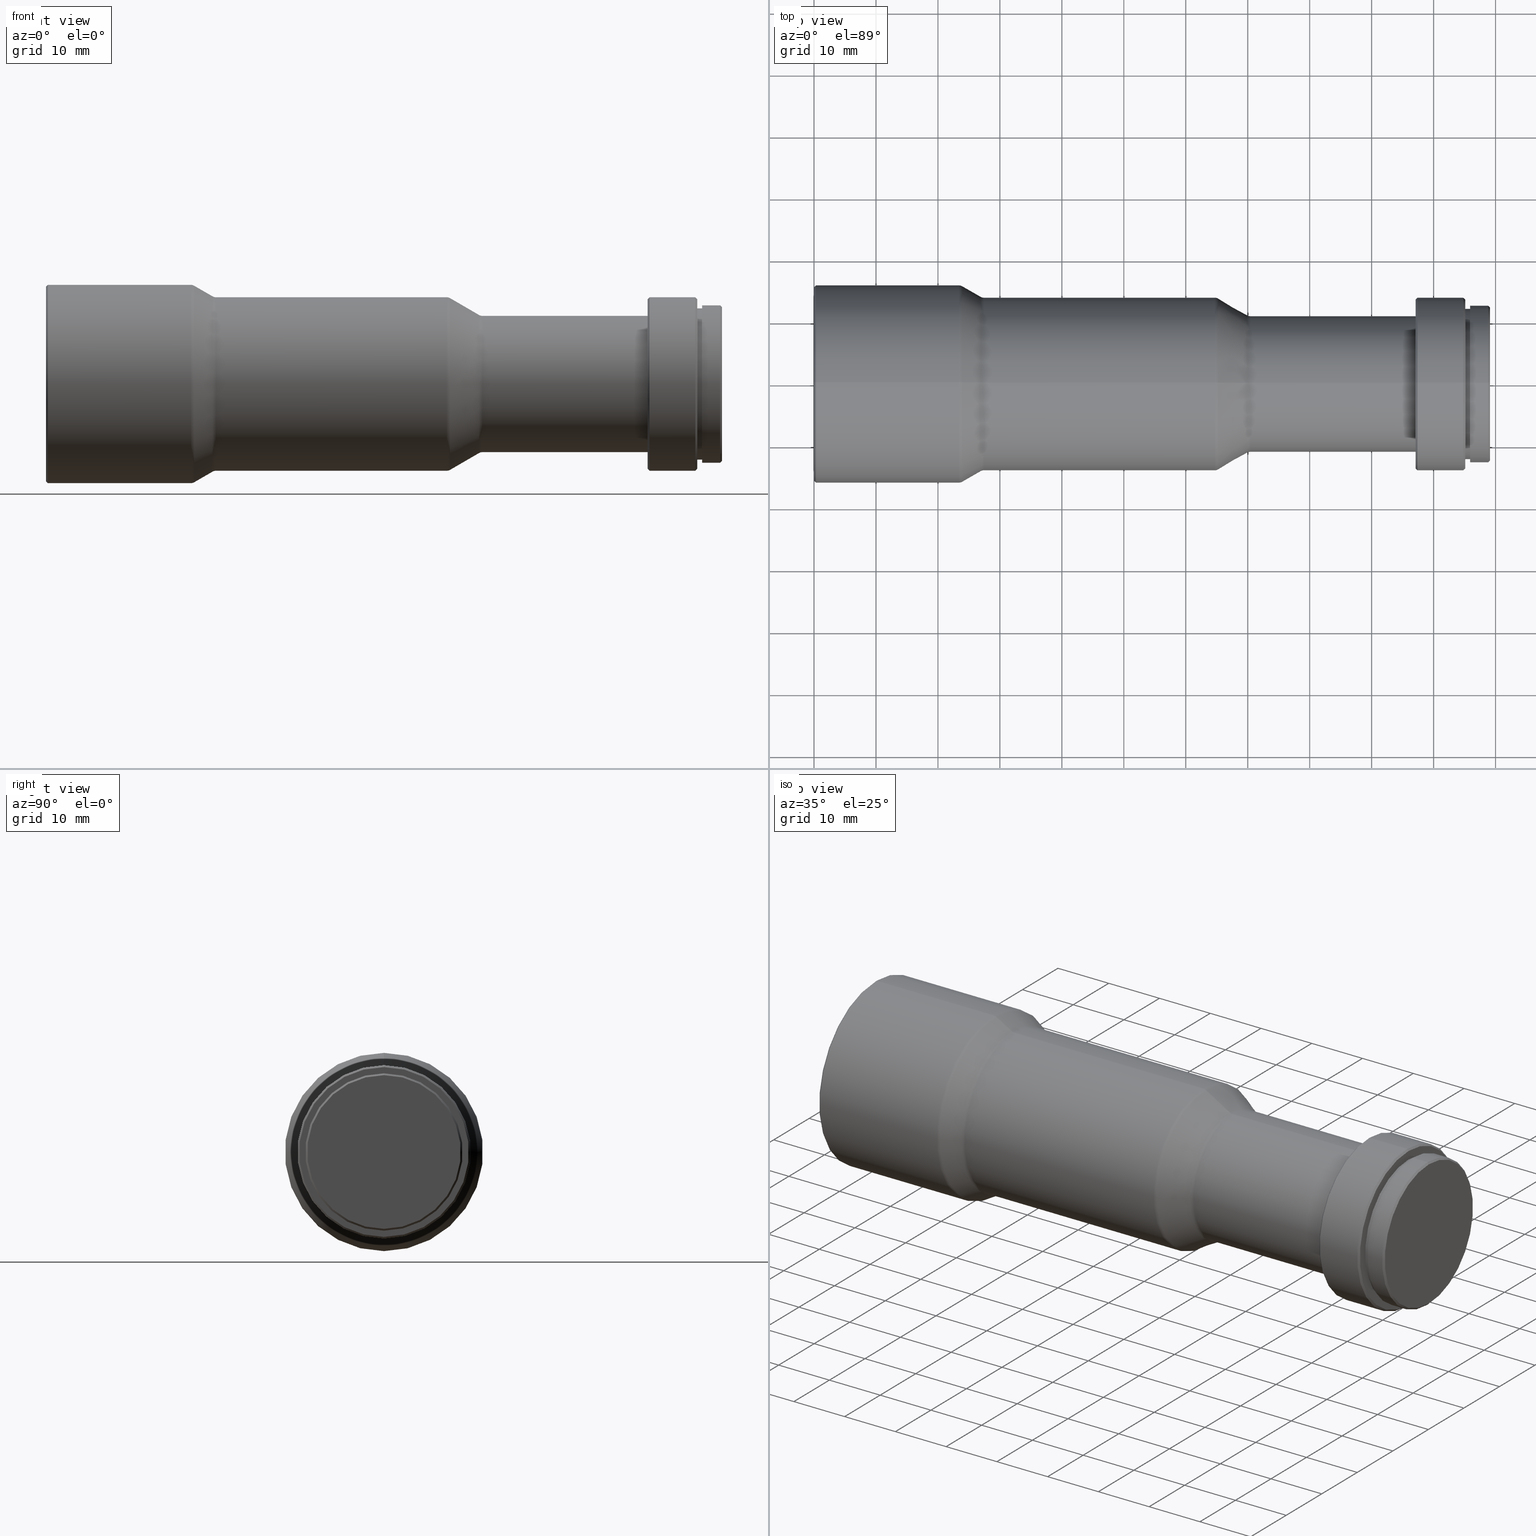
[diagram: canonical four-view strip — front | top / right | iso, engineering-drawing reading convention]
A machine part, canonical four-view strip (front | top / right | iso — engineering-drawing reading convention). The complete STEP part file that produces these views, byte-faithful:
ISO-10303-21;
HEADER;
FILE_DESCRIPTION (( 'STEP AP203' ),
    '1' );
FILE_NAME ('WWH10-108ATV3.STEP',
    '2021-09-09T07:08:35',
    ( '' ),
    ( '' ),
    'SwSTEP 2.0',
    'SolidWorks 2017',
    '' );
FILE_SCHEMA (( 'CONFIG_CONTROL_DESIGN' ));
ENDSEC;

DATA;
#1 = EDGE_CURVE ( 'NONE', #1018, #997, #567, .T. ) ;
#2 = EDGE_LOOP ( 'NONE', ( #431, #402, #715, #72 ) ) ;
#3 = AXIS2_PLACEMENT_3D ( 'NONE', #341, #662, #412 ) ;
#4 = CARTESIAN_POINT ( 'NONE',  ( 104.8000000000000100, 1.714505518806294600E-015, -14.00000000000000000 ) ) ;
#5 = ORIENTED_EDGE ( 'NONE', *, *, #374, .T. ) ;
#6 = DIRECTION ( 'NONE',  ( 1.000000000000000000, 0.0000000000000000000, 0.0000000000000000000 ) ) ;
#7 = DIRECTION ( 'NONE',  ( -1.000000000000000000, -0.0000000000000000000, -0.0000000000000000000 ) ) ;
#8 = CC_DESIGN_DATE_AND_TIME_ASSIGNMENT ( #117, #376, ( #513 ) ) ;
#9 = APPROVAL_PERSON_ORGANIZATION ( #437, #982, #221 ) ;
#10 = CARTESIAN_POINT ( 'NONE',  ( 0.0000000000000000000, 0.0000000000000000000, 12.70000000000000800 ) ) ;
#11 = ORIENTED_EDGE ( 'NONE', *, *, #556, .T. ) ;
#12 = CARTESIAN_POINT ( 'NONE',  ( 97.09999999999999400, 0.0000000000000000000, 11.00000000000000000 ) ) ;
#13 = CIRCLE ( 'NONE', #362, 15.86602540378443900 ) ;
#14 = EDGE_CURVE ( 'NONE', #404, #307, #269, .T. ) ;
#15 = CARTESIAN_POINT ( 'NONE',  ( 105.8999999999999900, 0.0000000000000000000, 0.0000000000000000000 ) ) ;
#16 = CARTESIAN_POINT ( 'NONE',  ( 97.39999999999999100, 0.0000000000000000000, -14.00000000000000000 ) ) ;
#17 = AXIS2_PLACEMENT_3D ( 'NONE', #161, #253, #811 ) ;
#18 = DIRECTION ( 'NONE',  ( -1.000000000000000000, -0.0000000000000000000, -0.0000000000000000000 ) ) ;
#19 = ORIENTED_EDGE ( 'NONE', *, *, #717, .T. ) ;
#20 = ADVANCED_FACE ( 'NONE', ( #107 ), #351, .T. ) ;
#21 = LINE ( 'NONE', #194, #769 ) ;
#22 = CARTESIAN_POINT ( 'NONE',  ( 26.89999999999999900, 0.0000000000000000000, 0.0000000000000000000 ) ) ;
#23 = ORIENTED_EDGE ( 'NONE', *, *, #224, .F. ) ;
#24 = EDGE_CURVE ( 'NONE', #442, #951, #21, .T. ) ;
#25 = ADVANCED_FACE ( 'NONE', ( #209 ), #507, .F. ) ;
#26 = LINE ( 'NONE', #89, #49 ) ;
#27 = CARTESIAN_POINT ( 'NONE',  ( 64.70000000000000300, 0.0000000000000000000, 0.0000000000000000000 ) ) ;
#28 = ADVANCED_FACE ( 'NONE', ( #141 ), #600, .F. ) ;
#29 = AXIS2_PLACEMENT_3D ( 'NONE', #733, #94, #885 ) ;
#30 = ORIENTED_EDGE ( 'NONE', *, *, #102, .F. ) ;
#31 = CIRCLE ( 'NONE', #832, 12.20000000000000800 ) ;
#32 = DIRECTION ( 'NONE',  ( -1.000000000000000000, -0.0000000000000000000, -0.0000000000000000000 ) ) ;
#33 = EDGE_LOOP ( 'NONE', ( #906, #974, #230, #263 ) ) ;
#34 = CARTESIAN_POINT ( 'NONE',  ( 69.89744790704824600, 0.0000000000000000000, 11.13545307017500400 ) ) ;
#35 = MANIFOLD_SOLID_BREP ( '��ת1', #438 ) ;
#36 = CARTESIAN_POINT ( 'NONE',  ( 0.0000000000000000000, 0.0000000000000000000, 14.00000000000000000 ) ) ;
#37 = CC_DESIGN_PERSON_AND_ORGANIZATION_ASSIGNMENT ( #960, #857, ( #817 ) ) ;
#38 = DIRECTION ( 'NONE',  ( -0.8660254037844389300, 6.123233995736761100E-017, -0.4999999999999995600 ) ) ;
#39 = CIRCLE ( 'NONE', #506, 12.70000000000000800 ) ;
#40 = CALENDAR_DATE ( 2021, 9, 9 ) ;
#41 = ORIENTED_EDGE ( 'NONE', *, *, #319, .T. ) ;
#42 = CYLINDRICAL_SURFACE ( 'NONE', #796, 14.00000000000000200 ) ;
#43 = DIRECTION ( 'NONE',  ( 0.0000000000000000000, 0.0000000000000000000, 1.000000000000000000 ) ) ;
#44 = ORIENTED_EDGE ( 'NONE', *, *, #556, .F. ) ;
#45 = AXIS2_PLACEMENT_3D ( 'NONE', #239, #68, #465 ) ;
#46 = DIRECTION ( 'NONE',  ( 0.0000000000000000000, 0.0000000000000000000, 1.000000000000000000 ) ) ;
#47 = ORIENTED_EDGE ( 'NONE', *, *, #830, .F. ) ;
#48 = CARTESIAN_POINT ( 'NONE',  ( 105.8999999999999900, 0.0000000000000000000, 0.0000000000000000000 ) ) ;
#49 = VECTOR ( 'NONE', #409, 1000.000000000000000 ) ;
#50 = ORIENTED_EDGE ( 'NONE', *, *, #474, .T. ) ;
#51 = FACE_OUTER_BOUND ( 'NONE', #685, .T. ) ;
#52 = PERSON_AND_ORGANIZATION_ROLE ( 'creator' ) ;
#53 = DIRECTION ( 'NONE',  ( -1.000000000000000000, -0.0000000000000000000, -0.0000000000000000000 ) ) ;
#54 = VERTEX_POINT ( 'NONE', #116 ) ;
#55 = EDGE_CURVE ( 'NONE', #987, #650, #315, .T. ) ;
#56 = EDGE_CURVE ( 'NONE', #624, #856, #156, .T. ) ;
#57 = CIRCLE ( 'NONE', #946, 15.69999999999999900 ) ;
#58 = DIRECTION ( 'NONE',  ( 1.000000000000000000, 0.0000000000000000000, 0.0000000000000000000 ) ) ;
#59 = DIRECTION ( 'NONE',  ( 0.0000000000000000000, 0.0000000000000000000, -1.000000000000000000 ) ) ;
#60 = AXIS2_PLACEMENT_3D ( 'NONE', #192, #345, #196 ) ;
#61 = APPLICATION_PROTOCOL_DEFINITION ( 'international standard', 'config_control_design', 1994, #770 ) ;
#62 = FACE_BOUND ( 'NONE', #359, .T. ) ;
#63 = EDGE_LOOP ( 'NONE', ( #896, #678, #870, #198 ) ) ;
#64 = PRODUCT_DEFINITION_SHAPE ( 'NONE', 'NONE',  #824 ) ;
#65 = CIRCLE ( 'NONE', #60, 15.86602540378443900 ) ;
#66 = CC_DESIGN_SECURITY_CLASSIFICATION ( #513, ( #178 ) ) ;
#67 = APPROVAL_STATUS ( 'not_yet_approved' ) ;
#68 = DIRECTION ( 'NONE',  ( -1.000000000000000000, -0.0000000000000000000, -0.0000000000000000000 ) ) ;
#69 = CARTESIAN_POINT ( 'NONE',  ( 105.0999999999999900, 0.0000000000000000000, 13.70000000000000100 ) ) ;
#70 = EDGE_CURVE ( 'NONE', #650, #171, #607, .T. ) ;
#71 = LOCAL_TIME ( 15, 8, 35.00000000000000000, #834 ) ;
#72 = ORIENTED_EDGE ( 'NONE', *, *, #102, .T. ) ;
#73 = AXIS2_PLACEMENT_3D ( 'NONE', #920, #286, #451 ) ;
#74 = CARTESIAN_POINT ( 'NONE',  ( 0.0000000000000000000, 0.0000000000000000000, 0.0000000000000000000 ) ) ;
#75 = CARTESIAN_POINT ( 'NONE',  ( 105.8999999999999900, 0.0000000000000000000, 0.0000000000000000000 ) ) ;
#76 = VERTEX_POINT ( 'NONE', #764 ) ;
#77 = FACE_BOUND ( 'NONE', #306, .T. ) ;
#78 = ORIENTED_EDGE ( 'NONE', *, *, #692, .F. ) ;
#79 = CARTESIAN_POINT ( 'NONE',  ( 23.39999999999999900, 0.0000000000000000000, 0.0000000000000000000 ) ) ;
#80 = EDGE_LOOP ( 'NONE', ( #281, #588, #378, #787 ) ) ;
#81 = DIRECTION ( 'NONE',  ( -1.000000000000000000, -0.0000000000000000000, -0.0000000000000000000 ) ) ;
#82 = EDGE_CURVE ( 'NONE', #641, #501, #433, .T. ) ;
#83 = CARTESIAN_POINT ( 'NONE',  ( 0.2999999999999999900, 1.959434878635765100E-015, 16.00000000000000000 ) ) ;
#84 = AXIS2_PLACEMENT_3D ( 'NONE', #74, #713, #628 ) ;
#85 = CARTESIAN_POINT ( 'NONE',  ( 105.0999999999999900, 13.70000000000000100, 0.0000000000000000000 ) ) ;
#86 = VERTEX_POINT ( 'NONE', #911 ) ;
#87 = CARTESIAN_POINT ( 'NONE',  ( 64.70000000000000300, 0.0000000000000000000, 14.00000000000000000 ) ) ;
#88 = FACE_OUTER_BOUND ( 'NONE', #812, .T. ) ;
#89 = CARTESIAN_POINT ( 'NONE',  ( 69.89744790704824600, 1.363699695944538600E-015, -11.13545307017500400 ) ) ;
#90 = LINE ( 'NONE', #458, #904 ) ;
#91 = EDGE_LOOP ( 'NONE', ( #687, #900, #570, #371 ) ) ;
#92 = CIRCLE ( 'NONE', #386, 11.13545307017500400 ) ;
#93 = CARTESIAN_POINT ( 'NONE',  ( 105.8999999999999900, 12.20000000000000800, 0.0000000000000000000 ) ) ;
#94 = DIRECTION ( 'NONE',  ( -1.000000000000000000, -0.0000000000000000000, -0.0000000000000000000 ) ) ;
#95 = PERSON_AND_ORGANIZATION ( #415, #801 ) ;
#96 = ORIENTED_EDGE ( 'NONE', *, *, #246, .T. ) ;
#97 = ADVANCED_FACE ( 'NONE', ( #410 ), #947, .T. ) ;
#98 = CARTESIAN_POINT ( 'NONE',  ( 70.40000000000000600, 0.0000000000000000000, 0.0000000000000000000 ) ) ;
#99 = AXIS2_PLACEMENT_3D ( 'NONE', #940, #873, #304 ) ;
#100 = VECTOR ( 'NONE', #541, 1000.000000000000000 ) ;
#101 = ORIENTED_EDGE ( 'NONE', *, *, #779, .F. ) ;
#102 = EDGE_CURVE ( 'NONE', #216, #1009, #1004, .T. ) ;
#103 = CARTESIAN_POINT ( 'NONE',  ( 109.1000000000000100, 0.0000000000000000000, 0.0000000000000000000 ) ) ;
#104 = ADVANCED_FACE ( 'NONE', ( #971 ), #810, .T. ) ;
#105 = ADVANCED_FACE ( 'NONE', ( #992 ), #326, .T. ) ;
#106 = ORIENTED_EDGE ( 'NONE', *, *, #129, .T. ) ;
#107 = FACE_OUTER_BOUND ( 'NONE', #259, .T. ) ;
#108 = DIRECTION ( 'NONE',  ( -1.000000000000000000, -0.0000000000000000000, -0.0000000000000000000 ) ) ;
#109 = EDGE_CURVE ( 'NONE', #353, #795, #630, .T. ) ;
#110 = DIRECTION ( 'NONE',  ( 0.0000000000000000000, 0.0000000000000000000, 1.000000000000000000 ) ) ;
#111 = EDGE_CURVE ( 'NONE', #843, #821, #424, .T. ) ;
#112 = PERSON_AND_ORGANIZATION ( #415, #801 ) ;
#113 = AXIS2_PLACEMENT_3D ( 'NONE', #842, #608, #127 ) ;
#114 = VERTEX_POINT ( 'NONE', #648 ) ;
#115 = FACE_OUTER_BOUND ( 'NONE', #80, .T. ) ;
#116 = CARTESIAN_POINT ( 'NONE',  ( 23.39999999999999900, 0.0000000000000000000, 16.00000000000000000 ) ) ;
#117 = DATE_AND_TIME ( #794, #363 ) ;
#118 = CC_DESIGN_APPROVAL ( #266, ( #824 ) ) ;
#119 = CIRCLE ( 'NONE', #3, 11.13545307017500400 ) ;
#120 = DIRECTION ( 'NONE',  ( 0.0000000000000000000, -1.000000000000000000, 0.0000000000000000000 ) ) ;
#121 = ORIENTED_EDGE ( 'NONE', *, *, #56, .T. ) ;
#122 = AXIS2_PLACEMENT_3D ( 'NONE', #535, #615, #58 ) ;
#123 = FACE_OUTER_BOUND ( 'NONE', #384, .T. ) ;
#124 = ORIENTED_EDGE ( 'NONE', *, *, #271, .T. ) ;
#125 = LINE ( 'NONE', #267, #961 ) ;
#126 = ORIENTED_EDGE ( 'NONE', *, *, #55, .T. ) ;
#127 = DIRECTION ( 'NONE',  ( 0.0000000000000000000, 0.0000000000000000000, 1.000000000000000000 ) ) ;
#128 = ORIENTED_EDGE ( 'NONE', *, *, #398, .F. ) ;
#129 = EDGE_CURVE ( 'NONE', #287, #997, #595, .T. ) ;
#130 = CARTESIAN_POINT ( 'NONE',  ( 23.39999999999999900, 0.0000000000000000000, 0.0000000000000000000 ) ) ;
#131 = ADVANCED_FACE ( 'NONE', ( #396 ), #798, .T. ) ;
#132 = AXIS2_PLACEMENT_3D ( 'NONE', #385, #548, #1019 ) ;
#133 = FACE_OUTER_BOUND ( 'NONE', #635, .T. ) ;
#134 = CARTESIAN_POINT ( 'NONE',  ( 97.09999999999999400, 0.0000000000000000000, -13.70000000000000100 ) ) ;
#135 = FACE_OUTER_BOUND ( 'NONE', #731, .T. ) ;
#136 = AXIS2_PLACEMENT_3D ( 'NONE', #139, #697, #530 ) ;
#137 = FACE_OUTER_BOUND ( 'NONE', #467, .T. ) ;
#138 = DIRECTION ( 'NONE',  ( 0.0000000000000000000, 0.0000000000000000000, 1.000000000000000000 ) ) ;
#139 = CARTESIAN_POINT ( 'NONE',  ( 105.0999999999999900, 0.0000000000000000000, 0.0000000000000000000 ) ) ;
#140 = CARTESIAN_POINT ( 'NONE',  ( 27.39999999999999900, 1.722709096827417100E-015, -14.00000000000000200 ) ) ;
#141 = FACE_OUTER_BOUND ( 'NONE', #596, .T. ) ;
#142 = DIRECTION ( 'NONE',  ( -0.7071067811865414700, 0.0000000000000000000, 0.7071067811865536800 ) ) ;
#143 = DIRECTION ( 'NONE',  ( 0.0000000000000000000, 0.0000000000000000000, 1.000000000000000000 ) ) ;
#144 = ORIENTED_EDGE ( 'NONE', *, *, #164, .T. ) ;
#145 = APPROVAL_STATUS ( 'not_yet_approved' ) ;
#146 = CARTESIAN_POINT ( 'NONE',  ( 23.39999999999999900, 1.836970198721029600E-015, -15.00000000000000000 ) ) ;
#147 = ORIENTED_EDGE ( 'NONE', *, *, #398, .T. ) ;
#148 = CYLINDRICAL_SURFACE ( 'NONE', #803, 14.00000000000000000 ) ;
#149 = CIRCLE ( 'NONE', #379, 14.13397459621556300 ) ;
#150 = EDGE_LOOP ( 'NONE', ( #147, #121, #922, #908 ) ) ;
#151 = AXIS2_PLACEMENT_3D ( 'NONE', #574, #425, #742 ) ;
#152 = EDGE_CURVE ( 'NONE', #1014, #215, #822, .T. ) ;
#153 = PERSON_AND_ORGANIZATION ( #415, #801 ) ;
#154 = VERTEX_POINT ( 'NONE', #760 ) ;
#155 = DIRECTION ( 'NONE',  ( -0.0000000000000000000, 1.000000000000000000, 1.224646799147353200E-016 ) ) ;
#156 = LINE ( 'NONE', #677, #619 ) ;
#157 = CARTESIAN_POINT ( 'NONE',  ( 0.0000000000000000000, 1.714505518806294800E-015, -14.00000000000000200 ) ) ;
#158 = CARTESIAN_POINT ( 'NONE',  ( 0.0000000000000000000, 1.347111479062088000E-015, -10.99999999999999600 ) ) ;
#159 = COORDINATED_UNIVERSAL_TIME_OFFSET ( 8, 0, .AHEAD. ) ;
#160 = CARTESIAN_POINT ( 'NONE',  ( 64.70000000000000300, 1.592040838891559300E-015, -13.00000000000000200 ) ) ;
#161 = CARTESIAN_POINT ( 'NONE',  ( 27.39999999999999900, 0.0000000000000000000, 0.0000000000000000000 ) ) ;
#162 = CIRCLE ( 'NONE', #245, 13.70000000000000100 ) ;
#163 = EDGE_CURVE ( 'NONE', #307, #404, #581, .T. ) ;
#164 = EDGE_CURVE ( 'NONE', #303, #1014, #555, .T. ) ;
#165 = AXIS2_PLACEMENT_3D ( 'NONE', #575, #748, #110 ) ;
#166 = ORIENTED_EDGE ( 'NONE', *, *, #765, .T. ) ;
#167 = DIRECTION ( 'NONE',  ( -1.000000000000000000, -0.0000000000000000000, -0.0000000000000000000 ) ) ;
#168 = VECTOR ( 'NONE', #680, 1000.000000000000000 ) ;
#169 = CARTESIAN_POINT ( 'NONE',  ( 109.1000000000000100, 0.0000000000000000000, 12.40000000000000700 ) ) ;
#170 = CC_DESIGN_PERSON_AND_ORGANIZATION_ASSIGNMENT ( #302, #52, ( #178 ) ) ;
#171 = VERTEX_POINT ( 'NONE', #140 ) ;
#172 = CARTESIAN_POINT ( 'NONE',  ( 0.0000000000000000000, 0.0000000000000000000, 0.0000000000000000000 ) ) ;
#173 = ORIENTED_EDGE ( 'NONE', *, *, #271, .F. ) ;
#174 = CARTESIAN_POINT ( 'NONE',  ( 26.89999999999999900, 0.0000000000000000000, 0.0000000000000000000 ) ) ;
#175 = VECTOR ( 'NONE', #949, 1000.000000000000000 ) ;
#176 = ORIENTED_EDGE ( 'NONE', *, *, #915, .T. ) ;
#177 = ADVANCED_FACE ( 'NONE', ( #133 ), #957, .T. ) ;
#178 = PRODUCT_DEFINITION_FORMATION_WITH_SPECIFIED_SOURCE ( '�κ�', '', #817, .NOT_KNOWN. ) ;
#179 = DIRECTION ( 'NONE',  ( 0.0000000000000000000, 0.0000000000000000000, 1.000000000000000000 ) ) ;
#180 = EDGE_LOOP ( 'NONE', ( #96, #711 ) ) ;
#181 = ADVANCED_FACE ( 'NONE', ( #718 ), #923, .F. ) ;
#182 = DIRECTION ( 'NONE',  ( 0.0000000000000000000, 0.0000000000000000000, 1.000000000000000000 ) ) ;
#183 = ADVANCED_FACE ( 'NONE', ( #289 ), #340, .T. ) ;
#184 = ORIENTED_EDGE ( 'NONE', *, *, #129, .F. ) ;
#185 = EDGE_CURVE ( 'NONE', #856, #287, #380, .T. ) ;
#186 = DIRECTION ( 'NONE',  ( -1.000000000000000000, -0.0000000000000000000, -0.0000000000000000000 ) ) ;
#187 = CYLINDRICAL_SURFACE ( 'NONE', #605, 14.00000000000000000 ) ;
#188 = CARTESIAN_POINT ( 'NONE',  ( 70.40000000000000600, 0.0000000000000000000, 0.0000000000000000000 ) ) ;
#189 = EDGE_LOOP ( 'NONE', ( #47, #364, #788, #512 ) ) ;
#190 = ORIENTED_EDGE ( 'NONE', *, *, #847, .T. ) ;
#191 = VECTOR ( 'NONE', #387, 1000.000000000000000 ) ;
#192 = CARTESIAN_POINT ( 'NONE',  ( 23.89999999999999900, 0.0000000000000000000, 0.0000000000000000000 ) ) ;
#193 = ORIENTED_EDGE ( 'NONE', *, *, #754, .F. ) ;
#194 = CARTESIAN_POINT ( 'NONE',  ( 0.0000000000000000000, 1.555301434917139400E-015, -12.70000000000000800 ) ) ;
#195 = AXIS2_PLACEMENT_3D ( 'NONE', #316, #956, #724 ) ;
#196 = DIRECTION ( 'NONE',  ( 0.0000000000000000000, 0.0000000000000000000, 1.000000000000000000 ) ) ;
#197 = EDGE_LOOP ( 'NONE', ( #235, #330, #41, #723 ) ) ;
#198 = ORIENTED_EDGE ( 'NONE', *, *, #152, .F. ) ;
#199 = DIRECTION ( 'NONE',  ( -1.000000000000000000, -0.0000000000000000000, -0.0000000000000000000 ) ) ;
#200 = CARTESIAN_POINT ( 'NONE',  ( 109.1000000000000100, 12.40000000000000700, 0.0000000000000000000 ) ) ;
#201 = DIRECTION ( 'NONE',  ( 0.0000000000000000000, 0.0000000000000000000, 1.000000000000000000 ) ) ;
#202 = VERTEX_POINT ( 'NONE', #463 ) ;
#203 = LINE ( 'NONE', #226, #875 ) ;
#204 = ORIENTED_EDGE ( 'NONE', *, *, #666, .F. ) ;
#205 = CARTESIAN_POINT ( 'NONE',  ( 27.39999999999999900, 0.0000000000000000000, 0.0000000000000000000 ) ) ;
#206 = EDGE_LOOP ( 'NONE', ( #942, #716, #983, #204 ) ) ;
#207 = ORIENTED_EDGE ( 'NONE', *, *, #56, .F. ) ;
#208 = DIRECTION ( 'NONE',  ( 0.0000000000000000000, 0.0000000000000000000, 1.000000000000000000 ) ) ;
#209 = FACE_OUTER_BOUND ( 'NONE', #504, .T. ) ;
#210 = DIRECTION ( 'NONE',  ( -1.000000000000000000, -0.0000000000000000000, -0.0000000000000000000 ) ) ;
#211 = AXIS2_PLACEMENT_3D ( 'NONE', #382, #369, #446 ) ;
#212 = APPROVAL_ROLE ( '' ) ;
#213 = CIRCLE ( 'NONE', #136, 12.20000000000000800 ) ;
#214 = CARTESIAN_POINT ( 'NONE',  ( 0.0000000000000000000, 0.0000000000000000000, 0.0000000000000000000 ) ) ;
#215 = VERTEX_POINT ( 'NONE', #233 ) ;
#216 = VERTEX_POINT ( 'NONE', #293 ) ;
#217 = CYLINDRICAL_SURFACE ( 'NONE', #342, 12.70000000000000800 ) ;
#218 = EDGE_LOOP ( 'NONE', ( #19, #604, #763, #655 ) ) ;
#219 = EDGE_CURVE ( 'NONE', #987, #202, #743, .T. ) ;
#220 = EDGE_CURVE ( 'NONE', #154, #1009, #689, .T. ) ;
#221 = APPROVAL_ROLE ( '' ) ;
#222 = AXIS2_PLACEMENT_3D ( 'NONE', #205, #676, #681 ) ;
#223 = ORIENTED_EDGE ( 'NONE', *, *, #164, .F. ) ;
#224 = EDGE_CURVE ( 'NONE', #749, #86, #57, .T. ) ;
#225 = PERSON_AND_ORGANIZATION_ROLE ( 'classification_officer' ) ;
#226 = CARTESIAN_POINT ( 'NONE',  ( 0.0000000000000000000, 1.494069094959771800E-015, -12.20000000000000800 ) ) ;
#227 = CARTESIAN_POINT ( 'NONE',  ( 105.8999999999999900, 1.555301434917139400E-015, -12.70000000000000800 ) ) ;
#228 = CARTESIAN_POINT ( 'NONE',  ( 0.0000000000000000000, 0.0000000000000000000, 0.0000000000000000000 ) ) ;
#229 = DATE_AND_TIME ( #722, #929 ) ;
#230 = ORIENTED_EDGE ( 'NONE', *, *, #375, .T. ) ;
#231 = FACE_OUTER_BOUND ( 'NONE', #913, .T. ) ;
#232 = DIRECTION ( 'NONE',  ( 0.0000000000000000000, 0.0000000000000000000, 1.000000000000000000 ) ) ;
#233 = CARTESIAN_POINT ( 'NONE',  ( 105.0999999999999900, 0.0000000000000000000, 12.20000000000000800 ) ) ;
#234 = CARTESIAN_POINT ( 'NONE',  ( 0.0000000000000000000, 0.0000000000000000000, 0.0000000000000000000 ) ) ;
#235 = ORIENTED_EDGE ( 'NONE', *, *, #592, .F. ) ;
#236 = APPROVAL ( #67, 'δָ��' ) ;
#237 = PLANE ( 'NONE',  #880 ) ;
#238 = ORIENTED_EDGE ( 'NONE', *, *, #582, .T. ) ;
#239 = CARTESIAN_POINT ( 'NONE',  ( 70.40000000000000600, 0.0000000000000000000, 0.0000000000000000000 ) ) ;
#240 = DIRECTION ( 'NONE',  ( 0.0000000000000000000, -1.224646799147353500E-016, 1.000000000000000000 ) ) ;
#241 = ORIENTED_EDGE ( 'NONE', *, *, #772, .T. ) ;
#242 = EDGE_CURVE ( 'NONE', #939, #930, #671, .T. ) ;
#243 = VECTOR ( 'NONE', #948, 1000.000000000000000 ) ;
#244 = DIRECTION ( 'NONE',  ( -1.000000000000000000, -0.0000000000000000000, -0.0000000000000000000 ) ) ;
#245 = AXIS2_PLACEMENT_3D ( 'NONE', #868, #296, #1006 ) ;
#246 = EDGE_CURVE ( 'NONE', #478, #951, #249, .T. ) ;
#247 = ORIENTED_EDGE ( 'NONE', *, *, #308, .F. ) ;
#248 = DIRECTION ( 'NONE',  ( 0.0000000000000000000, -1.224646799147353900E-016, 1.000000000000000000 ) ) ;
#249 = CIRCLE ( 'NONE', #598, 12.70000000000000800 ) ;
#250 = CC_DESIGN_APPROVAL ( #982, ( #178 ) ) ;
#251 = DIRECTION ( 'NONE',  ( 0.0000000000000000000, 0.0000000000000000000, -1.000000000000000000 ) ) ;
#252 = LOCAL_TIME ( 15, 8, 35.00000000000000000, #838 ) ;
#253 = DIRECTION ( 'NONE',  ( -1.000000000000000000, -0.0000000000000000000, -0.0000000000000000000 ) ) ;
#254 = LINE ( 'NONE', #400, #243 ) ;
#255 = CARTESIAN_POINT ( 'NONE',  ( 64.70000000000000300, 0.0000000000000000000, 0.0000000000000000000 ) ) ;
#256 = ORIENTED_EDGE ( 'NONE', *, *, #991, .F. ) ;
#257 = DIRECTION ( 'NONE',  ( -1.000000000000000000, -0.0000000000000000000, -0.0000000000000000000 ) ) ;
#258 = AXIS2_PLACEMENT_3D ( 'NONE', #360, #756, #46 ) ;
#259 = EDGE_LOOP ( 'NONE', ( #78, #564, #855, #757 ) ) ;
#260 = ADVANCED_FACE ( 'NONE', ( #88 ), #784, .F. ) ;
#261 = CIRCLE ( 'NONE', #886, 12.70000000000000800 ) ;
#262 = ORIENTED_EDGE ( 'NONE', *, *, #224, .T. ) ;
#263 = ORIENTED_EDGE ( 'NONE', *, *, #365, .F. ) ;
#264 = CIRCLE ( 'NONE', #720, 16.00000000000000000 ) ;
#265 = ADVANCED_FACE ( 'NONE', ( #882 ), #936, .T. ) ;
#266 = APPROVAL ( #145, 'δָ��' ) ;
#267 = CARTESIAN_POINT ( 'NONE',  ( 26.89999999999999900, 1.730912674848539400E-015, -14.13397459621556300 ) ) ;
#268 = ORIENTED_EDGE ( 'NONE', *, *, #508, .T. ) ;
#269 = CIRCLE ( 'NONE', #975, 11.00000000000000000 ) ;
#270 = EDGE_CURVE ( 'NONE', #951, #478, #39, .T. ) ;
#271 = EDGE_CURVE ( 'NONE', #930, #442, #540, .T. ) ;
#272 = AXIS2_PLACEMENT_3D ( 'NONE', #160, #719, #248 ) ;
#273 = FACE_OUTER_BOUND ( 'NONE', #944, .T. ) ;
#274 = EDGE_CURVE ( 'NONE', #154, #790, #119, .T. ) ;
#275 = EDGE_LOOP ( 'NONE', ( #485, #958, #1022, #470 ) ) ;
#276 = LINE ( 'NONE', #633, #191 ) ;
#277 = CARTESIAN_POINT ( 'NONE',  ( 104.8000000000000100, 0.0000000000000000000, 0.0000000000000000000 ) ) ;
#278 = CARTESIAN_POINT ( 'NONE',  ( 27.39999999999999900, 0.0000000000000000000, 15.00000000000000000 ) ) ;
#279 = DIRECTION ( 'NONE',  ( -1.000000000000000000, -0.0000000000000000000, -0.0000000000000000000 ) ) ;
#280 = DIRECTION ( 'NONE',  ( -1.000000000000000000, -0.0000000000000000000, -0.0000000000000000000 ) ) ;
#281 = ORIENTED_EDGE ( 'NONE', *, *, #878, .F. ) ;
#282 = ORIENTED_EDGE ( 'NONE', *, *, #534, .T. ) ;
#283 = ORIENTED_EDGE ( 'NONE', *, *, #698, .T. ) ;
#284 = EDGE_CURVE ( 'NONE', #114, #997, #910, .T. ) ;
#285 = DATE_TIME_ROLE ( 'creation_date' ) ;
#286 = DIRECTION ( 'NONE',  ( -1.000000000000000000, -0.0000000000000000000, -0.0000000000000000000 ) ) ;
#287 = VERTEX_POINT ( 'NONE', #16 ) ;
#288 = AXIS2_PLACEMENT_3D ( 'NONE', #859, #783, #143 ) ;
#289 = FACE_OUTER_BOUND ( 'NONE', #839, .T. ) ;
#290 = AXIS2_PLACEMENT_3D ( 'NONE', #926, #606, #532 ) ;
#291 = FACE_OUTER_BOUND ( 'NONE', #206, .T. ) ;
#292 = DIRECTION ( 'NONE',  ( 1.000000000000000000, 0.0000000000000000000, 0.0000000000000000000 ) ) ;
#293 = CARTESIAN_POINT ( 'NONE',  ( 70.40000000000000600, 0.0000000000000000000, 10.99999999999999500 ) ) ;
#294 = EDGE_LOOP ( 'NONE', ( #701, #573, #737, #106 ) ) ;
#295 = CIRCLE ( 'NONE', #557, 14.00000000000000000 ) ;
#296 = DIRECTION ( 'NONE',  ( -1.000000000000000000, -0.0000000000000000000, -0.0000000000000000000 ) ) ;
#297 = DIRECTION ( 'NONE',  ( 0.7071067811865414700, 0.0000000000000000000, -0.7071067811865536800 ) ) ;
#298 = DIRECTION ( 'NONE',  ( -1.000000000000000000, -0.0000000000000000000, -0.0000000000000000000 ) ) ;
#299 = DIRECTION ( 'NONE',  ( 0.0000000000000000000, 0.0000000000000000000, 1.000000000000000000 ) ) ;
#300 = DIRECTION ( 'NONE',  ( -1.000000000000000000, -0.0000000000000000000, -0.0000000000000000000 ) ) ;
#301 = CARTESIAN_POINT ( 'NONE',  ( 0.0000000000000000000, 1.714505518806294600E-015, -14.00000000000000000 ) ) ;
#302 = PERSON_AND_ORGANIZATION ( #415, #801 ) ;
#303 = VERTEX_POINT ( 'NONE', #625 ) ;
#304 = DIRECTION ( 'NONE',  ( 0.0000000000000000000, 0.0000000000000000000, 1.000000000000000000 ) ) ;
#305 = AXIS2_PLACEMENT_3D ( 'NONE', #1017, #475, #934 ) ;
#306 = EDGE_LOOP ( 'NONE', ( #452, #223 ) ) ;
#307 = VERTEX_POINT ( 'NONE', #12 ) ;
#308 = EDGE_CURVE ( 'NONE', #790, #501, #755, .T. ) ;
#309 = CARTESIAN_POINT ( 'NONE',  ( 0.2999999999999999900, 0.0000000000000000000, -16.00000000000000000 ) ) ;
#310 = DIRECTION ( 'NONE',  ( 0.0000000000000000000, 0.0000000000000000000, -1.000000000000000000 ) ) ;
#311 = APPROVAL_PERSON_ORGANIZATION ( #153, #236, #212 ) ;
#312 = EDGE_LOOP ( 'NONE', ( #356, #527, #372, #668 ) ) ;
#313 = DIRECTION ( 'NONE',  ( 0.0000000000000000000, 0.0000000000000000000, 1.000000000000000000 ) ) ;
#314 = DIRECTION ( 'NONE',  ( 0.0000000000000000000, 0.0000000000000000000, -1.000000000000000000 ) ) ;
#315 = CIRCLE ( 'NONE', #849, 0.9999999999999974500 ) ;
#316 = CARTESIAN_POINT ( 'NONE',  ( 105.0999999999999900, 0.0000000000000000000, 0.0000000000000000000 ) ) ;
#317 = APPROVAL_DATE_TIME ( #747, #266 ) ;
#318 = EDGE_CURVE ( 'NONE', #645, #987, #149, .T. ) ;
#319 = EDGE_CURVE ( 'NONE', #795, #650, #762, .T. ) ;
#320 = CONICAL_SURFACE ( 'NONE', #305, 12.40000000000000700, 0.7853981633974569400 ) ;
#321 = AXIS2_PLACEMENT_3D ( 'NONE', #200, #517, #440 ) ;
#322 = DIRECTION ( 'NONE',  ( 0.0000000000000000000, 0.0000000000000000000, 1.000000000000000000 ) ) ;
#323 = DIRECTION ( 'NONE',  ( -1.000000000000000000, -0.0000000000000000000, -0.0000000000000000000 ) ) ;
#324 = CARTESIAN_POINT ( 'NONE',  ( 105.0999999999999900, 0.0000000000000000000, 0.0000000000000000000 ) ) ;
#325 = DIRECTION ( 'NONE',  ( 0.0000000000000000000, 0.0000000000000000000, 1.000000000000000000 ) ) ;
#326 = CYLINDRICAL_SURFACE ( 'NONE', #898, 12.20000000000000800 ) ;
#327 = ORIENTED_EDGE ( 'NONE', *, *, #70, .T. ) ;
#328 = CARTESIAN_POINT ( 'NONE',  ( 0.0000000000000000000, 0.0000000000000000000, 0.0000000000000000000 ) ) ;
#329 = CIRCLE ( 'NONE', #552, 15.69999999999999900 ) ;
#330 = ORIENTED_EDGE ( 'NONE', *, *, #109, .T. ) ;
#331 = DIRECTION ( 'NONE',  ( -0.7071067811865414700, 0.0000000000000000000, 0.7071067811865536800 ) ) ;
#332 = FACE_OUTER_BOUND ( 'NONE', #500, .T. ) ;
#333 = ORIENTED_EDGE ( 'NONE', *, *, #163, .T. ) ;
#334 = ADVANCED_FACE ( 'NONE', ( #358 ), #675, .T. ) ;
#335 = CC_DESIGN_DATE_AND_TIME_ASSIGNMENT ( #229, #285, ( #824 ) ) ;
#336 = CARTESIAN_POINT ( 'NONE',  ( 105.0999999999999900, 0.0000000000000000000, 13.70000000000000100 ) ) ;
#337 = ORIENTED_EDGE ( 'NONE', *, *, #547, .F. ) ;
#338 = ADVANCED_FACE ( 'NONE', ( #332 ), #750, .T. ) ;
#339 = EDGE_CURVE ( 'NONE', #645, #550, #125, .T. ) ;
#340 = CONICAL_SURFACE ( 'NONE', #669, 16.00000000000000000, 0.7853981633974511700 ) ;
#341 = CARTESIAN_POINT ( 'NONE',  ( 69.89744790704824600, 0.0000000000000000000, 0.0000000000000000000 ) ) ;
#342 = AXIS2_PLACEMENT_3D ( 'NONE', #945, #785, #299 ) ;
#343 = EDGE_CURVE ( 'NONE', #833, #939, #487, .T. ) ;
#344 = CONICAL_SURFACE ( 'NONE', #497, 14.00000000000000000, 0.7853981633974569400 ) ;
#345 = DIRECTION ( 'NONE',  ( -1.000000000000000000, -0.0000000000000000000, -0.0000000000000000000 ) ) ;
#346 = ORIENTED_EDGE ( 'NONE', *, *, #70, .F. ) ;
#347 = VECTOR ( 'NONE', #792, 1000.000000000000000 ) ;
#348 = CARTESIAN_POINT ( 'NONE',  ( 64.70000000000000300, 0.0000000000000000000, 0.0000000000000000000 ) ) ;
#349 = EDGE_LOOP ( 'NONE', ( #262, #176 ) ) ;
#350 = DIRECTION ( 'NONE',  ( -1.000000000000000000, -0.0000000000000000000, -0.0000000000000000000 ) ) ;
#351 = CYLINDRICAL_SURFACE ( 'NONE', #165, 10.99999999999999600 ) ;
#352 = DIRECTION ( 'NONE',  ( 0.0000000000000000000, 0.0000000000000000000, 1.000000000000000000 ) ) ;
#353 = VERTEX_POINT ( 'NONE', #831 ) ;
#354 = DIRECTION ( 'NONE',  ( 0.0000000000000000000, 0.0000000000000000000, 1.000000000000000000 ) ) ;
#355 = DIRECTION ( 'NONE',  ( -0.7071067811865414700, 8.659560562355008000E-017, -0.7071067811865536800 ) ) ;
#356 = ORIENTED_EDGE ( 'NONE', *, *, #601, .F. ) ;
#357 = CIRCLE ( 'NONE', #211, 14.00000000000000000 ) ;
#358 = FACE_OUTER_BOUND ( 'NONE', #428, .T. ) ;
#359 = EDGE_LOOP ( 'NONE', ( #767, #738 ) ) ;
#360 = CARTESIAN_POINT ( 'NONE',  ( 97.39999999999999100, 0.0000000000000000000, 0.0000000000000000000 ) ) ;
#361 = DIRECTION ( 'NONE',  ( -1.000000000000000000, -0.0000000000000000000, -0.0000000000000000000 ) ) ;
#362 = AXIS2_PLACEMENT_3D ( 'NONE', #879, #244, #313 ) ;
#363 = LOCAL_TIME ( 15, 8, 35.00000000000000000, #560 ) ;
#364 = ORIENTED_EDGE ( 'NONE', *, *, #274, .T. ) ;
#365 = EDGE_CURVE ( 'NONE', #843, #54, #804, .T. ) ;
#366 = CARTESIAN_POINT ( 'NONE',  ( 0.0000000000000000000, 0.0000000000000000000, 0.0000000000000000000 ) ) ;
#367 = ORIENTED_EDGE ( 'NONE', *, *, #765, .F. ) ;
#368 = APPROVAL_STATUS ( 'not_yet_approved' ) ;
#369 = DIRECTION ( 'NONE',  ( -1.000000000000000000, -0.0000000000000000000, -0.0000000000000000000 ) ) ;
#370 = APPROVAL_PERSON_ORGANIZATION ( #586, #266, #994 ) ;
#371 = ORIENTED_EDGE ( 'NONE', *, *, #612, .F. ) ;
#372 = ORIENTED_EDGE ( 'NONE', *, *, #808, .T. ) ;
#373 = FACE_OUTER_BOUND ( 'NONE', #312, .T. ) ;
#374 = EDGE_CURVE ( 'NONE', #795, #353, #295, .T. ) ;
#375 = EDGE_CURVE ( 'NONE', #202, #54, #429, .T. ) ;
#376 = DATE_TIME_ROLE ( 'classification_date' ) ;
#377 = DIRECTION ( 'NONE',  ( 0.0000000000000000000, 0.0000000000000000000, 1.000000000000000000 ) ) ;
#378 = ORIENTED_EDGE ( 'NONE', *, *, #964, .T. ) ;
#379 = AXIS2_PLACEMENT_3D ( 'NONE', #22, #970, #495 ) ;
#380 = LINE ( 'NONE', #301, #902 ) ;
#381 = PLANE ( 'NONE',  #84 ) ;
#382 = CARTESIAN_POINT ( 'NONE',  ( 97.39999999999999100, 0.0000000000000000000, 0.0000000000000000000 ) ) ;
#383 = DIRECTION ( 'NONE',  ( 0.0000000000000000000, 0.0000000000000000000, -1.000000000000000000 ) ) ;
#384 = EDGE_LOOP ( 'NONE', ( #893, #283, #679, #979 ) ) ;
#385 = CARTESIAN_POINT ( 'NONE',  ( 97.09999999999999400, 0.0000000000000000000, 0.0000000000000000000 ) ) ;
#386 = AXIS2_PLACEMENT_3D ( 'NONE', #837, #350, #978 ) ;
#387 = DIRECTION ( 'NONE',  ( -1.000000000000000000, -0.0000000000000000000, -0.0000000000000000000 ) ) ;
#388 = CARTESIAN_POINT ( 'NONE',  ( 0.2999999999999999900, 0.0000000000000000000, 0.0000000000000000000 ) ) ;
#389 = LINE ( 'NONE', #158, #175 ) ;
#390 = VECTOR ( 'NONE', #522, 1000.000000000000000 ) ;
#391 = CARTESIAN_POINT ( 'NONE',  ( 65.20255209295174800, 0.0000000000000000000, 0.0000000000000000000 ) ) ;
#392 = AXIS2_PLACEMENT_3D ( 'NONE', #93, #6, #565 ) ;
#393 = ORIENTED_EDGE ( 'NONE', *, *, #559, .T. ) ;
#394 = DIRECTION ( 'NONE',  ( -1.000000000000000000, -0.0000000000000000000, -0.0000000000000000000 ) ) ;
#395 = DIRECTION ( 'NONE',  ( 0.0000000000000000000, 0.0000000000000000000, 1.000000000000000000 ) ) ;
#396 = FACE_OUTER_BOUND ( 'NONE', #33, .T. ) ;
#397 = CARTESIAN_POINT ( 'NONE',  ( 0.2999999999999999900, 0.0000000000000000000, 0.0000000000000000000 ) ) ;
#398 = EDGE_CURVE ( 'NONE', #417, #624, #439, .T. ) ;
#399 = ORIENTED_EDGE ( 'NONE', *, *, #24, .F. ) ;
#400 = CARTESIAN_POINT ( 'NONE',  ( 109.1000000000000100, 1.518562030942719000E-015, -12.40000000000000700 ) ) ;
#401 = AXIS2_PLACEMENT_3D ( 'NONE', #103, #108, #746 ) ;
#402 = ORIENTED_EDGE ( 'NONE', *, *, #482, .F. ) ;
#403 = TOROIDAL_SURFACE ( 'NONE', #758, 12.00000000000000000, 1.000000000000006400 ) ;
#404 = VERTEX_POINT ( 'NONE', #827 ) ;
#405 = CARTESIAN_POINT ( 'NONE',  ( 69.89744790704824600, 0.0000000000000000000, 11.13545307017500400 ) ) ;
#406 = EDGE_LOOP ( 'NONE', ( #241, #1001, #710, #490 ) ) ;
#407 = DATE_AND_TIME ( #516, #71 ) ;
#408 = AXIS2_PLACEMENT_3D ( 'NONE', #797, #874, #1020 ) ;
#409 = DIRECTION ( 'NONE',  ( -0.8645469298249873800, 6.154488120381685900E-017, -0.5025520929517539600 ) ) ;
#410 = FACE_OUTER_BOUND ( 'NONE', #63, .T. ) ;
#411 = DIRECTION ( 'NONE',  ( -1.000000000000000000, -0.0000000000000000000, -0.0000000000000000000 ) ) ;
#412 = DIRECTION ( 'NONE',  ( 0.0000000000000000000, 0.0000000000000000000, 1.000000000000000000 ) ) ;
#413 = DIRECTION ( 'NONE',  ( -1.000000000000000000, -0.0000000000000000000, -0.0000000000000000000 ) ) ;
#414 = CARTESIAN_POINT ( 'NONE',  ( 70.40000000000000600, 0.0000000000000000000, 0.0000000000000000000 ) ) ;
#415 = PERSON ( 'δָ��', 'δָ��', 'δָ��', ('δָ��'), ('δָ��'), ('δָ��') ) ;
#416 = FACE_OUTER_BOUND ( 'NONE', #189, .T. ) ;
#417 = VERTEX_POINT ( 'NONE', #336 ) ;
#418 = CARTESIAN_POINT ( 'NONE',  ( 26.89999999999999900, 0.0000000000000000000, 14.13397459621556300 ) ) ;
#419 = DIRECTION ( 'NONE',  ( -1.000000000000000000, -0.0000000000000000000, -0.0000000000000000000 ) ) ;
#420 = DIRECTION ( 'NONE',  ( -1.000000000000000000, -0.0000000000000000000, -0.0000000000000000000 ) ) ;
#421 = ADVANCED_FACE ( 'NONE', ( #416 ), #814, .T. ) ;
#422 = ORIENTED_EDGE ( 'NONE', *, *, #219, .F. ) ;
#423 = AXIS2_PLACEMENT_3D ( 'NONE', #593, #674, #434 ) ;
#424 = LINE ( 'NONE', #891, #835 ) ;
#425 = DIRECTION ( 'NONE',  ( -1.000000000000000000, -0.0000000000000000000, -0.0000000000000000000 ) ) ;
#426 = ADVANCED_FACE ( 'NONE', ( #461 ), #403, .F. ) ;
#427 = CIRCLE ( 'NONE', #712, 12.40000000000000700 ) ;
#428 = EDGE_LOOP ( 'NONE', ( #333, #524, #30, #658 ) ) ;
#429 = CIRCLE ( 'NONE', #912, 1.000000000000000900 ) ;
#430 = DIRECTION ( 'NONE',  ( -1.000000000000000000, -0.0000000000000000000, -0.0000000000000000000 ) ) ;
#431 = ORIENTED_EDGE ( 'NONE', *, *, #220, .F. ) ;
#432 = EDGE_CURVE ( 'NONE', #202, #550, #65, .T. ) ;
#433 = CIRCLE ( 'NONE', #632, 13.86454692982498700 ) ;
#434 = DIRECTION ( 'NONE',  ( 0.0000000000000000000, 0.0000000000000000000, -1.000000000000000000 ) ) ;
#435 = AXIS2_PLACEMENT_3D ( 'NONE', #188, #829, #352 ) ;
#436 = UNCERTAINTY_MEASURE_WITH_UNIT (LENGTH_MEASURE( 1.000000000000000100E-005 ), #529, 'distance_accuracy_value', 'NONE');
#437 = PERSON_AND_ORGANIZATION ( #415, #801 ) ;
#438 = CLOSED_SHELL ( 'NONE', ( #963, #584, #97, #734, #825, #494, #334, #25, #972, #104, #177, #260, #338, #921, #895, #183, #571, #741, #576, #131, #265, #181, #660, #502, #421, #426, #20, #894, #766, #966, #892, #664, #105, #823, #819, #579, #28 ) ) ;
#439 = CIRCLE ( 'NONE', #818, 13.70000000000000100 ) ;
#440 = DIRECTION ( 'NONE',  ( -0.0000000000000000000, 0.0000000000000000000, 1.000000000000000000 ) ) ;
#441 = AXIS2_PLACEMENT_3D ( 'NONE', #809, #411, #201 ) ;
#442 = VERTEX_POINT ( 'NONE', #667 ) ;
#443 = DIRECTION ( 'NONE',  ( 0.0000000000000000000, 0.0000000000000000000, 1.000000000000000000 ) ) ;
#444 = ORIENTED_EDGE ( 'NONE', *, *, #1016, .F. ) ;
#445 = FACE_OUTER_BOUND ( 'NONE', #218, .T. ) ;
#446 = DIRECTION ( 'NONE',  ( 0.0000000000000000000, 0.0000000000000000000, 1.000000000000000000 ) ) ;
#447 = ORIENTED_EDGE ( 'NONE', *, *, #432, .F. ) ;
#448 = CYLINDRICAL_SURFACE ( 'NONE', #99, 16.00000000000000000 ) ;
#449 = EDGE_CURVE ( 'NONE', #307, #216, #725, .T. ) ;
#450 = APPLICATION_PROTOCOL_DEFINITION ( 'international standard', 'config_control_design', 1994, #457 ) ;
#451 = DIRECTION ( 'NONE',  ( 0.0000000000000000000, 0.0000000000000000000, 1.000000000000000000 ) ) ;
#452 = ORIENTED_EDGE ( 'NONE', *, *, #652, .F. ) ;
#453 = CARTESIAN_POINT ( 'NONE',  ( 97.39999999999999100, 1.714505518806294600E-015, 14.00000000000000000 ) ) ;
#454 = CARTESIAN_POINT ( 'NONE',  ( 105.8999999999999900, 0.0000000000000000000, 0.0000000000000000000 ) ) ;
#455 = VECTOR ( 'NONE', #331, 1000.000000000000000 ) ;
#456 = CC_DESIGN_PERSON_AND_ORGANIZATION_ASSIGNMENT ( #95, #621, ( #178 ) ) ;
#457 = APPLICATION_CONTEXT ( 'configuration controlled 3d designs of mechanical parts and assemblies' ) ;
#458 = CARTESIAN_POINT ( 'NONE',  ( 97.39999999999999100, 0.0000000000000000000, -14.00000000000000000 ) ) ;
#459 = TOROIDAL_SURFACE ( 'NONE', #933, 15.00000000000000000, 1.000000000000000900 ) ;
#460 = CARTESIAN_POINT ( 'NONE',  ( 0.2999999999999999900, 0.0000000000000000000, 0.0000000000000000000 ) ) ;
#461 = FACE_OUTER_BOUND ( 'NONE', #2, .T. ) ;
#462 = DIRECTION ( 'NONE',  ( -1.000000000000000000, -0.0000000000000000000, -0.0000000000000000000 ) ) ;
#463 = CARTESIAN_POINT ( 'NONE',  ( 23.89999999999999900, 0.0000000000000000000, 15.86602540378443900 ) ) ;
#464 = ADVANCED_BREP_SHAPE_REPRESENTATION ( 'WWH10-108ATV3', ( #35, #122 ), #853 ) ;
#465 = DIRECTION ( 'NONE',  ( 0.0000000000000000000, 0.0000000000000000000, 1.000000000000000000 ) ) ;
#466 = CARTESIAN_POINT ( 'NONE',  ( 105.0999999999999900, 0.0000000000000000000, 0.0000000000000000000 ) ) ;
#467 = EDGE_LOOP ( 'NONE', ( #124, #599, #627, #444 ) ) ;
#468 = DIRECTION ( 'NONE',  ( 0.0000000000000000000, -1.224646799147353700E-016, 1.000000000000000000 ) ) ;
#469 = CARTESIAN_POINT ( 'NONE',  ( 0.0000000000000000000, 0.0000000000000000000, -15.69999999999999900 ) ) ;
#470 = ORIENTED_EDGE ( 'NONE', *, *, #897, .F. ) ;
#471 = AXIS2_PLACEMENT_3D ( 'NONE', #255, #954, #569 ) ;
#472 = DIRECTION ( 'NONE',  ( -1.000000000000000000, 0.0000000000000000000, -0.0000000000000000000 ) ) ;
#473 = FACE_OUTER_BOUND ( 'NONE', #275, .T. ) ;
#474 = EDGE_CURVE ( 'NONE', #856, #114, #998, .T. ) ;
#475 = DIRECTION ( 'NONE',  ( -1.000000000000000000, -0.0000000000000000000, -0.0000000000000000000 ) ) ;
#476 = DIRECTION ( 'NONE',  ( 0.0000000000000000000, -1.000000000000000000, 0.0000000000000000000 ) ) ;
#477 = ORIENTED_EDGE ( 'NONE', *, *, #915, .F. ) ;
#478 = VERTEX_POINT ( 'NONE', #503 ) ;
#479 = CARTESIAN_POINT ( 'NONE',  ( 105.0999999999999900, 1.696135816819084200E-015, -13.70000000000000100 ) ) ;
#480 = VECTOR ( 'NONE', #644, 1000.000000000000000 ) ;
#481 = DIRECTION ( 'NONE',  ( 0.0000000000000000000, 0.0000000000000000000, 1.000000000000000000 ) ) ;
#482 = EDGE_CURVE ( 'NONE', #790, #154, #92, .T. ) ;
#483 = CIRCLE ( 'NONE', #17, 14.00000000000000200 ) ;
#484 = AXIS2_PLACEMENT_3D ( 'NONE', #174, #420, #587 ) ;
#485 = ORIENTED_EDGE ( 'NONE', *, *, #642, .F. ) ;
#486 = CARTESIAN_POINT ( 'NONE',  ( 64.70000000000000300, 0.0000000000000000000, 13.00000000000000200 ) ) ;
#487 = CIRCLE ( 'NONE', #401, 12.40000000000000700 ) ;
#488 = DIRECTION ( 'NONE',  ( 0.0000000000000000000, 0.0000000000000000000, 1.000000000000000000 ) ) ;
#489 = DIRECTION ( 'NONE',  ( 0.0000000000000000000, 0.0000000000000000000, 1.000000000000000000 ) ) ;
#490 = ORIENTED_EDGE ( 'NONE', *, *, #808, .F. ) ;
#491 = AXIS2_PLACEMENT_3D ( 'NONE', #328, #18, #736 ) ;
#492 = VECTOR ( 'NONE', #988, 1000.000000000000000 ) ;
#493 = CARTESIAN_POINT ( 'NONE',  ( 0.0000000000000000000, 0.0000000000000000000, 0.0000000000000000000 ) ) ;
#494 = ADVANCED_FACE ( 'NONE', ( #115 ), #696, .T. ) ;
#495 = DIRECTION ( 'NONE',  ( 0.0000000000000000000, 0.0000000000000000000, 1.000000000000000000 ) ) ;
#496 = ORIENTED_EDGE ( 'NONE', *, *, #220, .T. ) ;
#497 = AXIS2_PLACEMENT_3D ( 'NONE', #554, #786, #314 ) ;
#498 = CIRCLE ( 'NONE', #195, 12.20000000000000800 ) ;
#499 = DIRECTION ( 'NONE',  ( 0.0000000000000000000, -1.000000000000000000, 0.0000000000000000000 ) ) ;
#500 = EDGE_LOOP ( 'NONE', ( #166, #845, #447, #422 ) ) ;
#501 = VERTEX_POINT ( 'NONE', #753 ) ;
#502 = ADVANCED_FACE ( 'NONE', ( #373 ), #597, .T. ) ;
#503 = CARTESIAN_POINT ( 'NONE',  ( 105.8999999999999900, 0.0000000000000000000, 12.70000000000000800 ) ) ;
#504 = EDGE_LOOP ( 'NONE', ( #780, #496, #282, #193 ) ) ;
#505 = EDGE_CURVE ( 'NONE', #562, #821, #776, .T. ) ;
#506 = AXIS2_PLACEMENT_3D ( 'NONE', #454, #1003, #208 ) ;
#507 = TOROIDAL_SURFACE ( 'NONE', #435, 12.00000000000000000, 1.000000000000006400 ) ;
#508 = EDGE_CURVE ( 'NONE', #624, #417, #162, .T. ) ;
#509 = DIRECTION ( 'NONE',  ( 0.0000000000000000000, 0.0000000000000000000, 1.000000000000000000 ) ) ;
#510 = CARTESIAN_POINT ( 'NONE',  ( 0.0000000000000000000, 0.0000000000000000000, 14.00000000000000200 ) ) ;
#511 = FACE_OUTER_BOUND ( 'NONE', #603, .T. ) ;
#512 = ORIENTED_EDGE ( 'NONE', *, *, #82, .F. ) ;
#513 = SECURITY_CLASSIFICATION ( '', '', #937 ) ;
#514 = CIRCLE ( 'NONE', #523, 16.00000000000000000 ) ;
#515 = DIRECTION ( 'NONE',  ( -1.000000000000000000, -0.0000000000000000000, -0.0000000000000000000 ) ) ;
#516 = CALENDAR_DATE ( 2021, 9, 9 ) ;
#517 = DIRECTION ( 'NONE',  ( -1.000000000000000000, 0.0000000000000000000, -0.0000000000000000000 ) ) ;
#518 = CONICAL_SURFACE ( 'NONE', #726, 16.00000000000000000, 0.7853981633974511700 ) ;
#519 = ORIENTED_EDGE ( 'NONE', *, *, #284, .T. ) ;
#520 = FACE_OUTER_BOUND ( 'NONE', #984, .T. ) ;
#521 = DIRECTION ( 'NONE',  ( 0.0000000000000000000, 0.0000000000000000000, -1.000000000000000000 ) ) ;
#522 = DIRECTION ( 'NONE',  ( -0.8645469298249873800, 0.0000000000000000000, 0.5025520929517539600 ) ) ;
#523 = AXIS2_PLACEMENT_3D ( 'NONE', #622, #394, #1011 ) ;
#524 = ORIENTED_EDGE ( 'NONE', *, *, #692, .T. ) ;
#525 = EDGE_CURVE ( 'NONE', #54, #843, #264, .T. ) ;
#526 = CARTESIAN_POINT ( 'NONE',  ( 26.89999999999999900, 0.0000000000000000000, 14.13397459621556300 ) ) ;
#527 = ORIENTED_EDGE ( 'NONE', *, *, #82, .T. ) ;
#528 = ORIENTED_EDGE ( 'NONE', *, *, #897, .T. ) ;
#529 =( LENGTH_UNIT ( ) NAMED_UNIT ( * ) SI_UNIT ( .MILLI., .METRE. ) );
#530 = DIRECTION ( 'NONE',  ( 0.0000000000000000000, 0.0000000000000000000, 1.000000000000000000 ) ) ;
#531 = CONICAL_SURFACE ( 'NONE', #73, 11.13545307017500400, 0.5265481941832606000 ) ;
#532 = DIRECTION ( 'NONE',  ( 0.0000000000000000000, 0.0000000000000000000, 1.000000000000000000 ) ) ;
#533 = LINE ( 'NONE', #83, #931 ) ;
#534 = EDGE_CURVE ( 'NONE', #1009, #216, #852, .T. ) ;
#535 = CARTESIAN_POINT ( 'NONE',  ( 0.0000000000000000000, 0.0000000000000000000, 0.0000000000000000000 ) ) ;
#536 = AXIS2_PLACEMENT_3D ( 'NONE', #869, #705, #791 ) ;
#537 = EDGE_CURVE ( 'NONE', #1008, #1018, #589, .T. ) ;
#538 = DIRECTION ( 'NONE',  ( -1.000000000000000000, -0.0000000000000000000, -0.0000000000000000000 ) ) ;
#539 = DIRECTION ( 'NONE',  ( 1.000000000000000000, 0.0000000000000000000, 0.0000000000000000000 ) ) ;
#540 = CIRCLE ( 'NONE', #441, 12.70000000000000800 ) ;
#541 = DIRECTION ( 'NONE',  ( -1.000000000000000000, -0.0000000000000000000, -0.0000000000000000000 ) ) ;
#542 = DIRECTION ( 'NONE',  ( 0.0000000000000000000, 0.0000000000000000000, 1.000000000000000000 ) ) ;
#543 = AXIS2_PLACEMENT_3D ( 'NONE', #277, #199, #751 ) ;
#544 = DIRECTION ( 'NONE',  ( 0.0000000000000000000, 0.0000000000000000000, 1.000000000000000000 ) ) ;
#545 = ORIENTED_EDGE ( 'NONE', *, *, #111, .F. ) ;
#546 = COORDINATED_UNIVERSAL_TIME_OFFSET ( 8, 0, .AHEAD. ) ;
#547 = EDGE_CURVE ( 'NONE', #303, #76, #203, .T. ) ;
#548 = DIRECTION ( 'NONE',  ( -1.000000000000000000, -0.0000000000000000000, -0.0000000000000000000 ) ) ;
#549 = VECTOR ( 'NONE', #257, 1000.000000000000000 ) ;
#550 = VERTEX_POINT ( 'NONE', #631 ) ;
#551 = EDGE_CURVE ( 'NONE', #821, #562, #514, .T. ) ;
#552 = AXIS2_PLACEMENT_3D ( 'NONE', #214, #778, #138 ) ;
#553 = ORIENTED_EDGE ( 'NONE', *, *, #318, .F. ) ;
#554 = CARTESIAN_POINT ( 'NONE',  ( 97.39999999999999100, 0.0000000000000000000, 0.0000000000000000000 ) ) ;
#555 = CIRCLE ( 'NONE', #580, 12.20000000000000800 ) ;
#556 = EDGE_CURVE ( 'NONE', #749, #821, #646, .T. ) ;
#557 = AXIS2_PLACEMENT_3D ( 'NONE', #27, #653, #663 ) ;
#558 = CARTESIAN_POINT ( 'NONE',  ( 23.39999999999999900, 1.959434878635765100E-015, -16.00000000000000000 ) ) ;
#559 = EDGE_CURVE ( 'NONE', #645, #171, #686, .T. ) ;
#560 = COORDINATED_UNIVERSAL_TIME_OFFSET ( 8, 0, .AHEAD. ) ;
#561 = CARTESIAN_POINT ( 'NONE',  ( 70.40000000000000600, 1.355405587503313500E-015, -10.99999999999999500 ) ) ;
#562 = VERTEX_POINT ( 'NONE', #699 ) ;
#563 = CC_DESIGN_APPROVAL ( #236, ( #513 ) ) ;
#564 = ORIENTED_EDGE ( 'NONE', *, *, #14, .T. ) ;
#565 = DIRECTION ( 'NONE',  ( 0.0000000000000000000, 0.0000000000000000000, -1.000000000000000000 ) ) ;
#566 = DIRECTION ( 'NONE',  ( -1.000000000000000000, -0.0000000000000000000, -0.0000000000000000000 ) ) ;
#567 = LINE ( 'NONE', #901, #981 ) ;
#568 = DIRECTION ( 'NONE',  ( 0.0000000000000000000, 0.0000000000000000000, 1.000000000000000000 ) ) ;
#569 = DIRECTION ( 'NONE',  ( 0.0000000000000000000, 0.0000000000000000000, 1.000000000000000000 ) ) ;
#570 = ORIENTED_EDGE ( 'NONE', *, *, #219, .T. ) ;
#571 = ADVANCED_FACE ( 'NONE', ( #1010 ), #381, .F. ) ;
#572 = CONICAL_SURFACE ( 'NONE', #594, 13.70000000000000100, 0.7853981633974569400 ) ;
#573 = ORIENTED_EDGE ( 'NONE', *, *, #537, .F. ) ;
#574 = CARTESIAN_POINT ( 'NONE',  ( 69.89744790704824600, 0.0000000000000000000, 0.0000000000000000000 ) ) ;
#575 = CARTESIAN_POINT ( 'NONE',  ( 0.0000000000000000000, 0.0000000000000000000, 0.0000000000000000000 ) ) ;
#576 = ADVANCED_FACE ( 'NONE', ( #828 ), #448, .T. ) ;
#577 = DIRECTION ( 'NONE',  ( 0.0000000000000000000, 0.0000000000000000000, -1.000000000000000000 ) ) ;
#578 = ORIENTED_EDGE ( 'NONE', *, *, #1016, .T. ) ;
#579 = ADVANCED_FACE ( 'NONE', ( #473 ), #320, .T. ) ;
#580 = AXIS2_PLACEMENT_3D ( 'NONE', #48, #700, #862 ) ;
#581 = CIRCLE ( 'NONE', #649, 11.00000000000000000 ) ;
#582 = EDGE_CURVE ( 'NONE', #86, #562, #533, .T. ) ;
#583 = CARTESIAN_POINT ( 'NONE',  ( 23.39999999999999900, 0.0000000000000000000, 0.0000000000000000000 ) ) ;
#584 = ADVANCED_FACE ( 'NONE', ( #137 ), #217, .T. ) ;
#585 = AXIS2_PLACEMENT_3D ( 'NONE', #486, #807, #251 ) ;
#586 = PERSON_AND_ORGANIZATION ( #415, #801 ) ;
#587 = DIRECTION ( 'NONE',  ( 0.0000000000000000000, 0.0000000000000000000, 1.000000000000000000 ) ) ;
#588 = ORIENTED_EDGE ( 'NONE', *, *, #1, .T. ) ;
#589 = CIRCLE ( 'NONE', #132, 13.70000000000000100 ) ;
#590 = DIRECTION ( 'NONE',  ( -1.000000000000000000, -0.0000000000000000000, -0.0000000000000000000 ) ) ;
#591 = ORIENTED_EDGE ( 'NONE', *, *, #943, .T. ) ;
#592 = EDGE_CURVE ( 'NONE', #353, #171, #887, .T. ) ;
#593 = CARTESIAN_POINT ( 'NONE',  ( 97.39999999999999100, 0.0000000000000000000, 0.0000000000000000000 ) ) ;
#594 = AXIS2_PLACEMENT_3D ( 'NONE', #466, #300, #395 ) ;
#595 = CIRCLE ( 'NONE', #258, 14.00000000000000000 ) ;
#596 = EDGE_LOOP ( 'NONE', ( #256, #683 ) ) ;
#597 = TOROIDAL_SURFACE ( 'NONE', #962, 13.00000000000000200, 0.9999999999999961100 ) ;
#598 = AXIS2_PLACEMENT_3D ( 'NONE', #15, #888, #955 ) ;
#599 = ORIENTED_EDGE ( 'NONE', *, *, #24, .T. ) ;
#600 = PLANE ( 'NONE',  #321 ) ;
#601 = EDGE_CURVE ( 'NONE', #641, #353, #907, .T. ) ;
#602 = CARTESIAN_POINT ( 'NONE',  ( 0.0000000000000000000, 0.0000000000000000000, 12.20000000000000800 ) ) ;
#603 = EDGE_LOOP ( 'NONE', ( #706, #917 ) ) ;
#604 = ORIENTED_EDGE ( 'NONE', *, *, #185, .T. ) ;
#605 = AXIS2_PLACEMENT_3D ( 'NONE', #881, #167, #322 ) ;
#606 = DIRECTION ( 'NONE',  ( -1.000000000000000000, -0.0000000000000000000, -0.0000000000000000000 ) ) ;
#607 = CIRCLE ( 'NONE', #222, 14.00000000000000200 ) ;
#608 = DIRECTION ( 'NONE',  ( -1.000000000000000000, -0.0000000000000000000, -0.0000000000000000000 ) ) ;
#609 = CARTESIAN_POINT ( 'NONE',  ( 97.09999999999999400, 11.00000000000000000, 0.0000000000000000000 ) ) ;
#610 = LINE ( 'NONE', #10, #100 ) ;
#611 = ORIENTED_EDGE ( 'NONE', *, *, #551, .T. ) ;
#612 = EDGE_CURVE ( 'NONE', #550, #202, #13, .T. ) ;
#613 = PERSON_AND_ORGANIZATION ( #415, #801 ) ;
#614 = AXIS2_PLACEMENT_3D ( 'NONE', #146, #793, #240 ) ;
#615 = DIRECTION ( 'NONE',  ( 0.0000000000000000000, 0.0000000000000000000, 1.000000000000000000 ) ) ;
#616 = DIRECTION ( 'NONE',  ( 0.0000000000000000000, 0.0000000000000000000, 1.000000000000000000 ) ) ;
#617 = ORIENTED_EDGE ( 'NONE', *, *, #559, .F. ) ;
#618 = DIRECTION ( 'NONE',  ( 1.000000000000000000, 0.0000000000000000000, 0.0000000000000000000 ) ) ;
#619 = VECTOR ( 'NONE', #355, 1000.000000000000000 ) ;
#620 = DIRECTION ( 'NONE',  ( 0.0000000000000000000, 0.0000000000000000000, 1.000000000000000000 ) ) ;
#621 = PERSON_AND_ORGANIZATION_ROLE ( 'design_supplier' ) ;
#622 = CARTESIAN_POINT ( 'NONE',  ( 0.2999999999999999900, 0.0000000000000000000, 0.0000000000000000000 ) ) ;
#623 = DIRECTION ( 'NONE',  ( 0.0000000000000000000, 0.0000000000000000000, -1.000000000000000000 ) ) ;
#624 = VERTEX_POINT ( 'NONE', #479 ) ;
#625 = CARTESIAN_POINT ( 'NONE',  ( 105.8999999999999900, 1.494069094959771800E-015, -12.20000000000000800 ) ) ;
#626 = FACE_BOUND ( 'NONE', #919, .T. ) ;
#627 = ORIENTED_EDGE ( 'NONE', *, *, #246, .F. ) ;
#628 = DIRECTION ( 'NONE',  ( 0.0000000000000000000, 0.0000000000000000000, -1.000000000000000000 ) ) ;
#629 = DIRECTION ( 'NONE',  ( -1.000000000000000000, -0.0000000000000000000, -0.0000000000000000000 ) ) ;
#630 = CIRCLE ( 'NONE', #471, 14.00000000000000000 ) ;
#631 = CARTESIAN_POINT ( 'NONE',  ( 23.89999999999999900, 1.951231300614642700E-015, -15.86602540378443900 ) ) ;
#632 = AXIS2_PLACEMENT_3D ( 'NONE', #844, #361, #443 ) ;
#633 = CARTESIAN_POINT ( 'NONE',  ( 0.0000000000000000000, 0.0000000000000000000, 16.00000000000000000 ) ) ;
#634 = CONICAL_SURFACE ( 'NONE', #918, 13.70000000000000100, 0.7853981633974569400 ) ;
#635 = EDGE_LOOP ( 'NONE', ( #5, #916, #346, #665 ) ) ;
#636 = CIRCLE ( 'NONE', #781, 1.000000000000006000 ) ;
#637 = CARTESIAN_POINT ( 'NONE',  ( 27.39999999999999900, 0.0000000000000000000, 14.00000000000000200 ) ) ;
#638 = PLANE ( 'NONE',  #392 ) ;
#639 = EDGE_LOOP ( 'NONE', ( #207, #268, #693, #740 ) ) ;
#640 = CARTESIAN_POINT ( 'NONE',  ( 0.2999999999999999900, 0.0000000000000000000, -16.00000000000000000 ) ) ;
#641 = VERTEX_POINT ( 'NONE', #799 ) ;
#642 = EDGE_CURVE ( 'NONE', #833, #442, #254, .T. ) ;
#643 = APPROVAL_DATE_TIME ( #860, #982 ) ;
#644 = DIRECTION ( 'NONE',  ( -0.8660254037844389300, 0.0000000000000000000, 0.4999999999999995600 ) ) ;
#645 = VERTEX_POINT ( 'NONE', #876 ) ;
#646 = LINE ( 'NONE', #309, #347 ) ;
#647 = DIRECTION ( 'NONE',  ( -1.000000000000000000, -0.0000000000000000000, -0.0000000000000000000 ) ) ;
#648 = CARTESIAN_POINT ( 'NONE',  ( 104.8000000000000100, 0.0000000000000000000, 14.00000000000000000 ) ) ;
#649 = AXIS2_PLACEMENT_3D ( 'NONE', #768, #280, #354 ) ;
#650 = VERTEX_POINT ( 'NONE', #637 ) ;
#651 = CARTESIAN_POINT ( 'NONE',  ( 70.40000000000000600, 1.469576158976823900E-015, -12.00000000000000000 ) ) ;
#652 = EDGE_CURVE ( 'NONE', #1014, #303, #31, .T. ) ;
#653 = DIRECTION ( 'NONE',  ( -1.000000000000000000, -0.0000000000000000000, -0.0000000000000000000 ) ) ;
#654 = CARTESIAN_POINT ( 'NONE',  ( 27.39999999999999900, 0.0000000000000000000, 0.0000000000000000000 ) ) ;
#655 = ORIENTED_EDGE ( 'NONE', *, *, #284, .F. ) ;
#656 = AXIS2_PLACEMENT_3D ( 'NONE', #935, #462, #616 ) ;
#657 = DIRECTION ( 'NONE',  ( -1.000000000000000000, -0.0000000000000000000, -0.0000000000000000000 ) ) ;
#658 = ORIENTED_EDGE ( 'NONE', *, *, #449, .F. ) ;
#659 = ORIENTED_EDGE ( 'NONE', *, *, #508, .F. ) ;
#660 = ADVANCED_FACE ( 'NONE', ( #953 ), #42, .T. ) ;
#661 = FACE_OUTER_BOUND ( 'NONE', #150, .T. ) ;
#662 = DIRECTION ( 'NONE',  ( -1.000000000000000000, -0.0000000000000000000, -0.0000000000000000000 ) ) ;
#663 = DIRECTION ( 'NONE',  ( 0.0000000000000000000, 0.0000000000000000000, 1.000000000000000000 ) ) ;
#664 = ADVANCED_FACE ( 'NONE', ( #231, #626 ), #237, .F. ) ;
#665 = ORIENTED_EDGE ( 'NONE', *, *, #319, .F. ) ;
#666 = EDGE_CURVE ( 'NONE', #54, #562, #276, .T. ) ;
#667 = CARTESIAN_POINT ( 'NONE',  ( 108.8000000000000100, 1.555301434917139400E-015, -12.70000000000000800 ) ) ;
#668 = ORIENTED_EDGE ( 'NONE', *, *, #109, .F. ) ;
#669 = AXIS2_PLACEMENT_3D ( 'NONE', #388, #618, #383 ) ;
#670 = DIRECTION ( 'NONE',  ( 0.7071067811865414700, 8.659560562355008000E-017, 0.7071067811865536800 ) ) ;
#671 = LINE ( 'NONE', #169, #455 ) ;
#672 = CC_DESIGN_PERSON_AND_ORGANIZATION_ASSIGNMENT ( #112, #688, ( #824 ) ) ;
#673 = FACE_OUTER_BOUND ( 'NONE', #639, .T. ) ;
#674 = DIRECTION ( 'NONE',  ( 1.000000000000000000, 0.0000000000000000000, 0.0000000000000000000 ) ) ;
#675 = CYLINDRICAL_SURFACE ( 'NONE', #491, 10.99999999999999600 ) ;
#676 = DIRECTION ( 'NONE',  ( -1.000000000000000000, -0.0000000000000000000, -0.0000000000000000000 ) ) ;
#677 = CARTESIAN_POINT ( 'NONE',  ( 105.0999999999999900, 1.677766114831874000E-015, -13.70000000000000100 ) ) ;
#678 = ORIENTED_EDGE ( 'NONE', *, *, #547, .T. ) ;
#679 = ORIENTED_EDGE ( 'NONE', *, *, #525, .F. ) ;
#680 = DIRECTION ( 'NONE',  ( -1.000000000000000000, -0.0000000000000000000, -0.0000000000000000000 ) ) ;
#681 = DIRECTION ( 'NONE',  ( 0.0000000000000000000, 0.0000000000000000000, 1.000000000000000000 ) ) ;
#682 = ORIENTED_EDGE ( 'NONE', *, *, #365, .T. ) ;
#683 = ORIENTED_EDGE ( 'NONE', *, *, #343, .F. ) ;
#684 = AXIS2_PLACEMENT_3D ( 'NONE', #654, #647, #813 ) ;
#685 = EDGE_LOOP ( 'NONE', ( #877, #23, #11, #611 ) ) ;
#686 = CIRCLE ( 'NONE', #1012, 0.9999999999999974500 ) ;
#687 = ORIENTED_EDGE ( 'NONE', *, *, #339, .F. ) ;
#688 = PERSON_AND_ORGANIZATION_ROLE ( 'creator' ) ;
#689 = CIRCLE ( 'NONE', #774, 1.000000000000006000 ) ;
#690 = DIRECTION ( 'NONE',  ( -1.000000000000000000, -0.0000000000000000000, -0.0000000000000000000 ) ) ;
#691 = CONICAL_SURFACE ( 'NONE', #745, 12.40000000000000700, 0.7853981633974569400 ) ;
#692 = EDGE_CURVE ( 'NONE', #404, #1009, #389, .T. ) ;
#693 = ORIENTED_EDGE ( 'NONE', *, *, #752, .T. ) ;
#694 = MECHANICAL_CONTEXT ( 'NONE', #770, 'mechanical' ) ;
#695 = DIRECTION ( 'NONE',  ( 0.7071067811865454600, 8.659560562354957500E-017, 0.7071067811865495700 ) ) ;
#696 = CONICAL_SURFACE ( 'NONE', #423, 14.00000000000000000, 0.7853981633974569400 ) ;
#697 = DIRECTION ( 'NONE',  ( -1.000000000000000000, -0.0000000000000000000, -0.0000000000000000000 ) ) ;
#698 = EDGE_CURVE ( 'NONE', #550, #843, #976, .T. ) ;
#699 = CARTESIAN_POINT ( 'NONE',  ( 0.2999999999999999900, 1.959434878635765100E-015, 16.00000000000000000 ) ) ;
#700 = DIRECTION ( 'NONE',  ( -1.000000000000000000, -0.0000000000000000000, -0.0000000000000000000 ) ) ;
#701 = ORIENTED_EDGE ( 'NONE', *, *, #1, .F. ) ;
#702 = FACE_OUTER_BOUND ( 'NONE', #294, .T. ) ;
#703 = DIRECTION ( 'NONE',  ( -1.000000000000000000, -0.0000000000000000000, -0.0000000000000000000 ) ) ;
#704 = AXIS2_PLACEMENT_3D ( 'NONE', #816, #566, #959 ) ;
#705 = DIRECTION ( 'NONE',  ( -1.000000000000000000, -0.0000000000000000000, -0.0000000000000000000 ) ) ;
#706 = ORIENTED_EDGE ( 'NONE', *, *, #537, .T. ) ;
#707 = DIRECTION ( 'NONE',  ( 0.0000000000000000000, 0.0000000000000000000, 1.000000000000000000 ) ) ;
#708 = DIRECTION ( 'NONE',  ( 0.0000000000000000000, 0.0000000000000000000, 1.000000000000000000 ) ) ;
#709 = ORIENTED_EDGE ( 'NONE', *, *, #505, .T. ) ;
#710 = ORIENTED_EDGE ( 'NONE', *, *, #374, .F. ) ;
#711 = ORIENTED_EDGE ( 'NONE', *, *, #270, .T. ) ;
#712 = AXIS2_PLACEMENT_3D ( 'NONE', #854, #1000, #544 ) ;
#713 = DIRECTION ( 'NONE',  ( 1.000000000000000000, 0.0000000000000000000, 0.0000000000000000000 ) ) ;
#714 = CARTESIAN_POINT ( 'NONE',  ( 0.0000000000000000000, 0.0000000000000000000, 0.0000000000000000000 ) ) ;
#715 = ORIENTED_EDGE ( 'NONE', *, *, #754, .T. ) ;
#716 = ORIENTED_EDGE ( 'NONE', *, *, #111, .T. ) ;
#717 = EDGE_CURVE ( 'NONE', #114, #856, #789, .T. ) ;
#718 = FACE_OUTER_BOUND ( 'NONE', #802, .T. ) ;
#719 = DIRECTION ( 'NONE',  ( -0.0000000000000000000, 1.000000000000000000, 1.224646799147353200E-016 ) ) ;
#720 = AXIS2_PLACEMENT_3D ( 'NONE', #79, #866, #542 ) ;
#721 = CARTESIAN_POINT ( 'NONE',  ( 109.1000000000000100, 1.536931732929929200E-015, -12.40000000000000700 ) ) ;
#722 = CALENDAR_DATE ( 2021, 9, 9 ) ;
#723 = ORIENTED_EDGE ( 'NONE', *, *, #847, .F. ) ;
#724 = DIRECTION ( 'NONE',  ( 0.0000000000000000000, 0.0000000000000000000, 1.000000000000000000 ) ) ;
#725 = LINE ( 'NONE', #905, #864 ) ;
#726 = AXIS2_PLACEMENT_3D ( 'NONE', #397, #539, #623 ) ;
#727 = DESIGN_CONTEXT ( 'detailed design', #457, 'design' ) ;
#728 = LINE ( 'NONE', #69, #840 ) ;
#729 = DIRECTION ( 'NONE',  ( 0.0000000000000000000, 0.0000000000000000000, 1.000000000000000000 ) ) ;
#730 = CARTESIAN_POINT ( 'NONE',  ( 23.39999999999999900, 0.0000000000000000000, 15.00000000000000000 ) ) ;
#731 = EDGE_LOOP ( 'NONE', ( #759, #50, #519, #184 ) ) ;
#732 = DIRECTION ( 'NONE',  ( -0.0000000000000000000, 1.000000000000000000, 1.224646799147353200E-016 ) ) ;
#733 = CARTESIAN_POINT ( 'NONE',  ( 0.0000000000000000000, 0.0000000000000000000, 0.0000000000000000000 ) ) ;
#734 = ADVANCED_FACE ( 'NONE', ( #661 ), #572, .T. ) ;
#735 = CYLINDRICAL_SURFACE ( 'NONE', #656, 16.00000000000000000 ) ;
#736 = DIRECTION ( 'NONE',  ( 0.0000000000000000000, 0.0000000000000000000, 1.000000000000000000 ) ) ;
#737 = ORIENTED_EDGE ( 'NONE', *, *, #924, .T. ) ;
#738 = ORIENTED_EDGE ( 'NONE', *, *, #14, .F. ) ;
#739 = AXIS2_PLACEMENT_3D ( 'NONE', #460, #703, #707 ) ;
#740 = ORIENTED_EDGE ( 'NONE', *, *, #474, .F. ) ;
#741 = ADVANCED_FACE ( 'NONE', ( #51 ), #518, .T. ) ;
#742 = DIRECTION ( 'NONE',  ( 0.0000000000000000000, 0.0000000000000000000, 1.000000000000000000 ) ) ;
#743 = LINE ( 'NONE', #418, #480 ) ;
#744 = CARTESIAN_POINT ( 'NONE',  ( 97.09999999999999400, 0.0000000000000000000, 0.0000000000000000000 ) ) ;
#745 = AXIS2_PLACEMENT_3D ( 'NONE', #771, #210, #782 ) ;
#746 = DIRECTION ( 'NONE',  ( 0.0000000000000000000, 0.0000000000000000000, 1.000000000000000000 ) ) ;
#747 = DATE_AND_TIME ( #950, #973 ) ;
#748 = DIRECTION ( 'NONE',  ( -1.000000000000000000, -0.0000000000000000000, -0.0000000000000000000 ) ) ;
#749 = VERTEX_POINT ( 'NONE', #469 ) ;
#750 = CONICAL_SURFACE ( 'NONE', #484, 14.13397459621556300, 0.5235987755982983700 ) ;
#751 = DIRECTION ( 'NONE',  ( 0.0000000000000000000, 0.0000000000000000000, 1.000000000000000000 ) ) ;
#752 = EDGE_CURVE ( 'NONE', #417, #114, #728, .T. ) ;
#753 = CARTESIAN_POINT ( 'NONE',  ( 65.20255209295174800, 0.0000000000000000000, 13.86454692982498700 ) ) ;
#754 = EDGE_CURVE ( 'NONE', #790, #216, #636, .T. ) ;
#755 = LINE ( 'NONE', #34, #390 ) ;
#756 = DIRECTION ( 'NONE',  ( -1.000000000000000000, -0.0000000000000000000, -0.0000000000000000000 ) ) ;
#757 = ORIENTED_EDGE ( 'NONE', *, *, #534, .F. ) ;
#758 = AXIS2_PLACEMENT_3D ( 'NONE', #98, #186, #899 ) ;
#759 = ORIENTED_EDGE ( 'NONE', *, *, #185, .F. ) ;
#760 = CARTESIAN_POINT ( 'NONE',  ( 69.89744790704824600, 1.530808498934190900E-015, -11.13545307017500400 ) ) ;
#761 = FACE_OUTER_BOUND ( 'NONE', #180, .T. ) ;
#762 = LINE ( 'NONE', #510, #549 ) ;
#763 = ORIENTED_EDGE ( 'NONE', *, *, #964, .F. ) ;
#764 = CARTESIAN_POINT ( 'NONE',  ( 105.0999999999999900, 1.494069094959771800E-015, -12.20000000000000800 ) ) ;
#765 = EDGE_CURVE ( 'NONE', #987, #645, #986, .T. ) ;
#766 = ADVANCED_FACE ( 'NONE', ( #702 ), #344, .T. ) ;
#767 = ORIENTED_EDGE ( 'NONE', *, *, #163, .F. ) ;
#768 = CARTESIAN_POINT ( 'NONE',  ( 97.09999999999999400, 0.0000000000000000000, 0.0000000000000000000 ) ) ;
#769 = VECTOR ( 'NONE', #430, 1000.000000000000000 ) ;
#770 = APPLICATION_CONTEXT ( 'configuration controlled 3d designs of mechanical parts and assemblies' ) ;
#771 = CARTESIAN_POINT ( 'NONE',  ( 109.1000000000000100, 0.0000000000000000000, 0.0000000000000000000 ) ) ;
#772 = EDGE_CURVE ( 'NONE', #501, #641, #995, .T. ) ;
#773 = CARTESIAN_POINT ( 'NONE',  ( 105.8999999999999900, 0.0000000000000000000, 12.20000000000000800 ) ) ;
#774 = AXIS2_PLACEMENT_3D ( 'NONE', #651, #732, #884 ) ;
#775 = ORIENTED_EDGE ( 'NONE', *, *, #642, .T. ) ;
#776 = CIRCLE ( 'NONE', #739, 16.00000000000000000 ) ;
#777 = ORIENTED_EDGE ( 'NONE', *, *, #152, .T. ) ;
#778 = DIRECTION ( 'NONE',  ( -1.000000000000000000, -0.0000000000000000000, -0.0000000000000000000 ) ) ;
#779 = EDGE_CURVE ( 'NONE', #76, #215, #498, .T. ) ;
#780 = ORIENTED_EDGE ( 'NONE', *, *, #274, .F. ) ;
#781 = AXIS2_PLACEMENT_3D ( 'NONE', #800, #476, #310 ) ;
#782 = DIRECTION ( 'NONE',  ( 0.0000000000000000000, 0.0000000000000000000, 1.000000000000000000 ) ) ;
#783 = DIRECTION ( 'NONE',  ( -1.000000000000000000, -0.0000000000000000000, -0.0000000000000000000 ) ) ;
#784 = TOROIDAL_SURFACE ( 'NONE', #684, 15.00000000000000000, 0.9999999999999983300 ) ;
#785 = DIRECTION ( 'NONE',  ( -1.000000000000000000, -0.0000000000000000000, -0.0000000000000000000 ) ) ;
#786 = DIRECTION ( 'NONE',  ( 1.000000000000000000, 0.0000000000000000000, 0.0000000000000000000 ) ) ;
#787 = ORIENTED_EDGE ( 'NONE', *, *, #924, .F. ) ;
#788 = ORIENTED_EDGE ( 'NONE', *, *, #308, .T. ) ;
#789 = CIRCLE ( 'NONE', #536, 14.00000000000000000 ) ;
#790 = VERTEX_POINT ( 'NONE', #405 ) ;
#791 = DIRECTION ( 'NONE',  ( 0.0000000000000000000, 0.0000000000000000000, 1.000000000000000000 ) ) ;
#792 = DIRECTION ( 'NONE',  ( 0.7071067811865454600, 0.0000000000000000000, -0.7071067811865495700 ) ) ;
#793 = DIRECTION ( 'NONE',  ( -0.0000000000000000000, 1.000000000000000000, 1.224646799147353200E-016 ) ) ;
#794 = CALENDAR_DATE ( 2021, 9, 9 ) ;
#795 = VERTEX_POINT ( 'NONE', #87 ) ;
#796 = AXIS2_PLACEMENT_3D ( 'NONE', #714, #629, #232 ) ;
#797 = CARTESIAN_POINT ( 'NONE',  ( 26.89999999999999900, 0.0000000000000000000, 0.0000000000000000000 ) ) ;
#798 = TOROIDAL_SURFACE ( 'NONE', #113, 15.00000000000000000, 1.000000000000000900 ) ;
#799 = CARTESIAN_POINT ( 'NONE',  ( 65.20255209295174800, 1.706211410365068800E-015, -13.86454692982498700 ) ) ;
#800 = CARTESIAN_POINT ( 'NONE',  ( 70.40000000000000600, 0.0000000000000000000, 12.00000000000000000 ) ) ;
#801 = ORGANIZATION ( 'δָ��', 'δָ��', '' ) ;
#802 = EDGE_LOOP ( 'NONE', ( #617, #367, #126, #327 ) ) ;
#803 = AXIS2_PLACEMENT_3D ( 'NONE', #366, #53, #620 ) ;
#804 = CIRCLE ( 'NONE', #993, 16.00000000000000000 ) ;
#805 = DIRECTION ( 'NONE',  ( -1.000000000000000000, -0.0000000000000000000, -0.0000000000000000000 ) ) ;
#806 = ORIENTED_EDGE ( 'NONE', *, *, #666, .T. ) ;
#807 = DIRECTION ( 'NONE',  ( 0.0000000000000000000, -1.000000000000000000, 0.0000000000000000000 ) ) ;
#808 = EDGE_CURVE ( 'NONE', #501, #795, #883, .T. ) ;
#809 = CARTESIAN_POINT ( 'NONE',  ( 108.8000000000000100, 0.0000000000000000000, 0.0000000000000000000 ) ) ;
#810 = TOROIDAL_SURFACE ( 'NONE', #704, 13.00000000000000200, 0.9999999999999961100 ) ;
#811 = DIRECTION ( 'NONE',  ( 0.0000000000000000000, 0.0000000000000000000, 1.000000000000000000 ) ) ;
#812 = EDGE_LOOP ( 'NONE', ( #553, #393, #190, #841 ) ) ;
#813 = DIRECTION ( 'NONE',  ( 0.0000000000000000000, 0.0000000000000000000, 1.000000000000000000 ) ) ;
#814 = CONICAL_SURFACE ( 'NONE', #151, 11.13545307017500400, 0.5265481941832606000 ) ;
#815 = EDGE_LOOP ( 'NONE', ( #850, #969, #967, #247 ) ) ;
#816 = CARTESIAN_POINT ( 'NONE',  ( 64.70000000000000300, 0.0000000000000000000, 0.0000000000000000000 ) ) ;
#817 = PRODUCT ( 'WWH10-108ATV3', 'WWH10-108ATV3', '', ( #694 ) ) ;
#818 = AXIS2_PLACEMENT_3D ( 'NONE', #965, #657, #182 ) ;
#819 = ADVANCED_FACE ( 'NONE', ( #273 ), #1021, .T. ) ;
#820 = ORIENTED_EDGE ( 'NONE', *, *, #991, .T. ) ;
#821 = VERTEX_POINT ( 'NONE', #640 ) ;
#822 = LINE ( 'NONE', #602, #168 ) ;
#823 = ADVANCED_FACE ( 'NONE', ( #77, #761 ), #638, .F. ) ;
#824 = PRODUCT_DEFINITION ( 'δ֪', '', #178, #727 ) ;
#825 = ADVANCED_FACE ( 'NONE', ( #445 ), #187, .T. ) ;
#826 = FACE_OUTER_BOUND ( 'NONE', #815, .T. ) ;
#827 = CARTESIAN_POINT ( 'NONE',  ( 97.09999999999999400, 1.347111479062088400E-015, -10.99999999999999800 ) ) ;
#828 = FACE_OUTER_BOUND ( 'NONE', #990, .T. ) ;
#829 = DIRECTION ( 'NONE',  ( -1.000000000000000000, -0.0000000000000000000, -0.0000000000000000000 ) ) ;
#830 = EDGE_CURVE ( 'NONE', #154, #641, #26, .T. ) ;
#831 = CARTESIAN_POINT ( 'NONE',  ( 64.70000000000000300, 1.714505518806294600E-015, -14.00000000000000000 ) ) ;
#832 = AXIS2_PLACEMENT_3D ( 'NONE', #75, #81, #708 ) ;
#833 = VERTEX_POINT ( 'NONE', #721 ) ;
#834 = COORDINATED_UNIVERSAL_TIME_OFFSET ( 8, 0, .AHEAD. ) ;
#835 = VECTOR ( 'NONE', #419, 1000.000000000000000 ) ;
#836 = AXIS2_PLACEMENT_3D ( 'NONE', #609, #292, #59 ) ;
#837 = CARTESIAN_POINT ( 'NONE',  ( 69.89744790704824600, 0.0000000000000000000, 0.0000000000000000000 ) ) ;
#838 = COORDINATED_UNIVERSAL_TIME_OFFSET ( 8, 0, .AHEAD. ) ;
#839 = EDGE_LOOP ( 'NONE', ( #477, #238, #709, #44 ) ) ;
#840 = VECTOR ( 'NONE', #142, 1000.000000000000000 ) ;
#841 = ORIENTED_EDGE ( 'NONE', *, *, #55, .F. ) ;
#842 = CARTESIAN_POINT ( 'NONE',  ( 23.39999999999999900, 0.0000000000000000000, 0.0000000000000000000 ) ) ;
#843 = VERTEX_POINT ( 'NONE', #558 ) ;
#844 = CARTESIAN_POINT ( 'NONE',  ( 65.20255209295174800, 0.0000000000000000000, 0.0000000000000000000 ) ) ;
#845 = ORIENTED_EDGE ( 'NONE', *, *, #339, .T. ) ;
#846 = CARTESIAN_POINT ( 'NONE',  ( 26.89999999999999900, 0.0000000000000000000, 0.0000000000000000000 ) ) ;
#847 = EDGE_CURVE ( 'NONE', #171, #650, #483, .T. ) ;
#848 = CARTESIAN_POINT ( 'NONE',  ( 108.8000000000000100, 0.0000000000000000000, 12.70000000000000800 ) ) ;
#849 = AXIS2_PLACEMENT_3D ( 'NONE', #278, #120, #521 ) ;
#850 = ORIENTED_EDGE ( 'NONE', *, *, #482, .T. ) ;
#851 =( NAMED_UNIT ( * ) PLANE_ANGLE_UNIT ( ) SI_UNIT ( $, .RADIAN. ) );
#852 = CIRCLE ( 'NONE', #45, 10.99999999999999500 ) ;
#853 =( GEOMETRIC_REPRESENTATION_CONTEXT ( 3 ) GLOBAL_UNCERTAINTY_ASSIGNED_CONTEXT ( ( #436 ) ) GLOBAL_UNIT_ASSIGNED_CONTEXT ( ( #529, #851, #1005 ) ) REPRESENTATION_CONTEXT ( 'NONE', 'WORKASPACE' ) );
#854 = CARTESIAN_POINT ( 'NONE',  ( 109.1000000000000100, 0.0000000000000000000, 0.0000000000000000000 ) ) ;
#855 = ORIENTED_EDGE ( 'NONE', *, *, #449, .T. ) ;
#856 = VERTEX_POINT ( 'NONE', #4 ) ;
#857 = PERSON_AND_ORGANIZATION_ROLE ( 'design_owner' ) ;
#858 = DIRECTION ( 'NONE',  ( -1.000000000000000000, -0.0000000000000000000, -0.0000000000000000000 ) ) ;
#859 = CARTESIAN_POINT ( 'NONE',  ( 27.39999999999999900, 0.0000000000000000000, 0.0000000000000000000 ) ) ;
#860 = DATE_AND_TIME ( #40, #252 ) ;
#861 = CARTESIAN_POINT ( 'NONE',  ( 27.39999999999999900, 1.836970198721029600E-015, -15.00000000000000000 ) ) ;
#862 = DIRECTION ( 'NONE',  ( 0.0000000000000000000, 0.0000000000000000000, 1.000000000000000000 ) ) ;
#863 = ORIENTED_EDGE ( 'NONE', *, *, #242, .F. ) ;
#864 = VECTOR ( 'NONE', #515, 1000.000000000000000 ) ;
#865 = EDGE_LOOP ( 'NONE', ( #337, #144, #777, #101 ) ) ;
#866 = DIRECTION ( 'NONE',  ( -1.000000000000000000, -0.0000000000000000000, -0.0000000000000000000 ) ) ;
#867 = AXIS2_PLACEMENT_3D ( 'NONE', #414, #7, #489 ) ;
#868 = CARTESIAN_POINT ( 'NONE',  ( 105.0999999999999900, 0.0000000000000000000, 0.0000000000000000000 ) ) ;
#869 = CARTESIAN_POINT ( 'NONE',  ( 104.8000000000000100, 0.0000000000000000000, 0.0000000000000000000 ) ) ;
#870 = ORIENTED_EDGE ( 'NONE', *, *, #943, .F. ) ;
#871 = PRODUCT_RELATED_PRODUCT_CATEGORY ( 'detail', '', ( #817 ) ) ;
#872 = ORIENTED_EDGE ( 'NONE', *, *, #270, .F. ) ;
#873 = DIRECTION ( 'NONE',  ( -1.000000000000000000, -0.0000000000000000000, -0.0000000000000000000 ) ) ;
#874 = DIRECTION ( 'NONE',  ( -1.000000000000000000, -0.0000000000000000000, -0.0000000000000000000 ) ) ;
#875 = VECTOR ( 'NONE', #538, 1000.000000000000000 ) ;
#876 = CARTESIAN_POINT ( 'NONE',  ( 26.89999999999999900, 1.836970198721030000E-015, -14.13397459621556300 ) ) ;
#877 = ORIENTED_EDGE ( 'NONE', *, *, #582, .F. ) ;
#878 = EDGE_CURVE ( 'NONE', #1018, #1008, #914, .T. ) ;
#879 = CARTESIAN_POINT ( 'NONE',  ( 23.89999999999999900, 0.0000000000000000000, 0.0000000000000000000 ) ) ;
#880 = AXIS2_PLACEMENT_3D ( 'NONE', #85, #472, #941 ) ;
#881 = CARTESIAN_POINT ( 'NONE',  ( 0.0000000000000000000, 0.0000000000000000000, 0.0000000000000000000 ) ) ;
#882 = FACE_OUTER_BOUND ( 'NONE', #91, .T. ) ;
#883 = CIRCLE ( 'NONE', #585, 0.9999999999999956700 ) ;
#884 = DIRECTION ( 'NONE',  ( 0.0000000000000000000, -1.224646799147352700E-016, 1.000000000000000000 ) ) ;
#885 = DIRECTION ( 'NONE',  ( 0.0000000000000000000, 0.0000000000000000000, 1.000000000000000000 ) ) ;
#886 = AXIS2_PLACEMENT_3D ( 'NONE', #932, #690, #996 ) ;
#887 = LINE ( 'NONE', #157, #1023 ) ;
#888 = DIRECTION ( 'NONE',  ( -1.000000000000000000, -0.0000000000000000000, -0.0000000000000000000 ) ) ;
#889 = ORIENTED_EDGE ( 'NONE', *, *, #551, .F. ) ;
#890 = DIRECTION ( 'NONE',  ( -1.000000000000000000, -0.0000000000000000000, -0.0000000000000000000 ) ) ;
#891 = CARTESIAN_POINT ( 'NONE',  ( 0.0000000000000000000, 1.959434878635765100E-015, -16.00000000000000000 ) ) ;
#892 = ADVANCED_FACE ( 'NONE', ( #673 ), #634, .T. ) ;
#893 = ORIENTED_EDGE ( 'NONE', *, *, #432, .T. ) ;
#894 = ADVANCED_FACE ( 'NONE', ( #62, #511 ), #1007, .F. ) ;
#895 = ADVANCED_FACE ( 'NONE', ( #291 ), #735, .T. ) ;
#896 = ORIENTED_EDGE ( 'NONE', *, *, #652, .T. ) ;
#897 = EDGE_CURVE ( 'NONE', #442, #930, #261, .T. ) ;
#898 = AXIS2_PLACEMENT_3D ( 'NONE', #493, #323, #325 ) ;
#899 = DIRECTION ( 'NONE',  ( 0.0000000000000000000, 0.0000000000000000000, 1.000000000000000000 ) ) ;
#900 = ORIENTED_EDGE ( 'NONE', *, *, #318, .T. ) ;
#901 = CARTESIAN_POINT ( 'NONE',  ( 97.39999999999999100, 1.714505518806294600E-015, 14.00000000000000000 ) ) ;
#902 = VECTOR ( 'NONE', #298, 1000.000000000000000 ) ;
#903 = CC_DESIGN_PERSON_AND_ORGANIZATION_ASSIGNMENT ( #613, #225, ( #513 ) ) ;
#904 = VECTOR ( 'NONE', #297, 1000.000000000000000 ) ;
#905 = CARTESIAN_POINT ( 'NONE',  ( 0.0000000000000000000, 0.0000000000000000000, 10.99999999999999600 ) ) ;
#906 = ORIENTED_EDGE ( 'NONE', *, *, #698, .F. ) ;
#907 = CIRCLE ( 'NONE', #272, 0.9999999999999956700 ) ;
#908 = ORIENTED_EDGE ( 'NONE', *, *, #752, .F. ) ;
#909 = DIRECTION ( 'NONE',  ( -1.000000000000000000, -0.0000000000000000000, -0.0000000000000000000 ) ) ;
#910 = LINE ( 'NONE', #36, #492 ) ;
#911 = CARTESIAN_POINT ( 'NONE',  ( 0.0000000000000000000, 1.941065176648554700E-015, 15.69999999999999900 ) ) ;
#912 = AXIS2_PLACEMENT_3D ( 'NONE', #730, #499, #577 ) ;
#913 = EDGE_LOOP ( 'NONE', ( #128, #659 ) ) ;
#914 = CIRCLE ( 'NONE', #290, 13.70000000000000100 ) ;
#915 = EDGE_CURVE ( 'NONE', #86, #749, #329, .T. ) ;
#916 = ORIENTED_EDGE ( 'NONE', *, *, #592, .T. ) ;
#917 = ORIENTED_EDGE ( 'NONE', *, *, #878, .T. ) ;
#918 = AXIS2_PLACEMENT_3D ( 'NONE', #324, #413, #568 ) ;
#919 = EDGE_LOOP ( 'NONE', ( #591, #1015 ) ) ;
#920 = CARTESIAN_POINT ( 'NONE',  ( 69.89744790704824600, 0.0000000000000000000, 0.0000000000000000000 ) ) ;
#921 = ADVANCED_FACE ( 'NONE', ( #123 ), #459, .T. ) ;
#922 = ORIENTED_EDGE ( 'NONE', *, *, #717, .F. ) ;
#923 = TOROIDAL_SURFACE ( 'NONE', #288, 15.00000000000000000, 0.9999999999999983300 ) ;
#924 = EDGE_CURVE ( 'NONE', #1008, #287, #90, .T. ) ;
#925 = CARTESIAN_POINT ( 'NONE',  ( 97.09999999999999400, 1.696135816819084200E-015, 13.70000000000000100 ) ) ;
#926 = CARTESIAN_POINT ( 'NONE',  ( 97.09999999999999400, 0.0000000000000000000, 0.0000000000000000000 ) ) ;
#927 = AXIS2_PLACEMENT_3D ( 'NONE', #228, #938, #928 ) ;
#928 = DIRECTION ( 'NONE',  ( 0.0000000000000000000, 0.0000000000000000000, 1.000000000000000000 ) ) ;
#929 = LOCAL_TIME ( 15, 8, 35.00000000000000000, #546 ) ;
#930 = VERTEX_POINT ( 'NONE', #848 ) ;
#931 = VECTOR ( 'NONE', #695, 1000.000000000000000 ) ;
#932 = CARTESIAN_POINT ( 'NONE',  ( 108.8000000000000100, 0.0000000000000000000, 0.0000000000000000000 ) ) ;
#933 = AXIS2_PLACEMENT_3D ( 'NONE', #130, #858, #377 ) ;
#934 = DIRECTION ( 'NONE',  ( 0.0000000000000000000, 0.0000000000000000000, 1.000000000000000000 ) ) ;
#935 = CARTESIAN_POINT ( 'NONE',  ( 0.0000000000000000000, 0.0000000000000000000, 0.0000000000000000000 ) ) ;
#936 = CONICAL_SURFACE ( 'NONE', #977, 14.13397459621556300, 0.5235987755982983700 ) ;
#937 = SECURITY_CLASSIFICATION_LEVEL ( 'unclassified' ) ;
#938 = DIRECTION ( 'NONE',  ( -1.000000000000000000, -0.0000000000000000000, -0.0000000000000000000 ) ) ;
#939 = VERTEX_POINT ( 'NONE', #1002 ) ;
#940 = CARTESIAN_POINT ( 'NONE',  ( 0.0000000000000000000, 0.0000000000000000000, 0.0000000000000000000 ) ) ;
#941 = DIRECTION ( 'NONE',  ( -0.0000000000000000000, 0.0000000000000000000, 1.000000000000000000 ) ) ;
#942 = ORIENTED_EDGE ( 'NONE', *, *, #525, .T. ) ;
#943 = EDGE_CURVE ( 'NONE', #215, #76, #213, .T. ) ;
#944 = EDGE_LOOP ( 'NONE', ( #399, #528, #578, #872 ) ) ;
#945 = CARTESIAN_POINT ( 'NONE',  ( 0.0000000000000000000, 0.0000000000000000000, 0.0000000000000000000 ) ) ;
#946 = AXIS2_PLACEMENT_3D ( 'NONE', #172, #890, #729 ) ;
#947 = CYLINDRICAL_SURFACE ( 'NONE', #29, 12.20000000000000800 ) ;
#948 = DIRECTION ( 'NONE',  ( -0.7071067811865414700, 8.659560562355008000E-017, -0.7071067811865536800 ) ) ;
#949 = DIRECTION ( 'NONE',  ( -1.000000000000000000, -0.0000000000000000000, -0.0000000000000000000 ) ) ;
#950 = CALENDAR_DATE ( 2021, 9, 9 ) ;
#951 = VERTEX_POINT ( 'NONE', #227 ) ;
#952 = DIRECTION ( 'NONE',  ( -1.000000000000000000, -0.0000000000000000000, -0.0000000000000000000 ) ) ;
#953 = FACE_OUTER_BOUND ( 'NONE', #197, .T. ) ;
#954 = DIRECTION ( 'NONE',  ( -1.000000000000000000, -0.0000000000000000000, -0.0000000000000000000 ) ) ;
#955 = DIRECTION ( 'NONE',  ( 0.0000000000000000000, 0.0000000000000000000, 1.000000000000000000 ) ) ;
#956 = DIRECTION ( 'NONE',  ( -1.000000000000000000, -0.0000000000000000000, -0.0000000000000000000 ) ) ;
#957 = CYLINDRICAL_SURFACE ( 'NONE', #927, 14.00000000000000200 ) ;
#958 = ORIENTED_EDGE ( 'NONE', *, *, #343, .T. ) ;
#959 = DIRECTION ( 'NONE',  ( 0.0000000000000000000, 0.0000000000000000000, 1.000000000000000000 ) ) ;
#960 = PERSON_AND_ORGANIZATION ( #415, #801 ) ;
#961 = VECTOR ( 'NONE', #38, 1000.000000000000000 ) ;
#962 = AXIS2_PLACEMENT_3D ( 'NONE', #348, #279, #43 ) ;
#963 = ADVANCED_FACE ( 'NONE', ( #520 ), #691, .T. ) ;
#964 = EDGE_CURVE ( 'NONE', #997, #287, #357, .T. ) ;
#965 = CARTESIAN_POINT ( 'NONE',  ( 105.0999999999999900, 0.0000000000000000000, 0.0000000000000000000 ) ) ;
#966 = ADVANCED_FACE ( 'NONE', ( #135 ), #148, .T. ) ;
#967 = ORIENTED_EDGE ( 'NONE', *, *, #772, .F. ) ;
#968 = APPROVAL_DATE_TIME ( #407, #236 ) ;
#969 = ORIENTED_EDGE ( 'NONE', *, *, #830, .T. ) ;
#970 = DIRECTION ( 'NONE',  ( -1.000000000000000000, -0.0000000000000000000, -0.0000000000000000000 ) ) ;
#971 = FACE_OUTER_BOUND ( 'NONE', #406, .T. ) ;
#972 = ADVANCED_FACE ( 'NONE', ( #826 ), #531, .T. ) ;
#973 = LOCAL_TIME ( 15, 8, 35.00000000000000000, #159 ) ;
#974 = ORIENTED_EDGE ( 'NONE', *, *, #612, .T. ) ;
#975 = AXIS2_PLACEMENT_3D ( 'NONE', #744, #32, #509 ) ;
#976 = CIRCLE ( 'NONE', #614, 1.000000000000000900 ) ;
#977 = AXIS2_PLACEMENT_3D ( 'NONE', #846, #909, #985 ) ;
#978 = DIRECTION ( 'NONE',  ( 0.0000000000000000000, 0.0000000000000000000, 1.000000000000000000 ) ) ;
#979 = ORIENTED_EDGE ( 'NONE', *, *, #375, .F. ) ;
#980 = SHAPE_DEFINITION_REPRESENTATION ( #64, #464 ) ;
#981 = VECTOR ( 'NONE', #670, 1000.000000000000000 ) ;
#982 = APPROVAL ( #368, 'δָ��' ) ;
#983 = ORIENTED_EDGE ( 'NONE', *, *, #505, .F. ) ;
#984 = EDGE_LOOP ( 'NONE', ( #820, #775, #173, #863 ) ) ;
#985 = DIRECTION ( 'NONE',  ( 0.0000000000000000000, 0.0000000000000000000, 1.000000000000000000 ) ) ;
#986 = CIRCLE ( 'NONE', #408, 14.13397459621556300 ) ;
#987 = VERTEX_POINT ( 'NONE', #526 ) ;
#988 = DIRECTION ( 'NONE',  ( -1.000000000000000000, -0.0000000000000000000, -0.0000000000000000000 ) ) ;
#989 = AXIS2_PLACEMENT_3D ( 'NONE', #391, #1013, #488 ) ;
#990 = EDGE_LOOP ( 'NONE', ( #545, #682, #806, #889 ) ) ;
#991 = EDGE_CURVE ( 'NONE', #939, #833, #427, .T. ) ;
#992 = FACE_OUTER_BOUND ( 'NONE', #865, .T. ) ;
#993 = AXIS2_PLACEMENT_3D ( 'NONE', #583, #590, #179 ) ;
#994 = APPROVAL_ROLE ( '' ) ;
#995 = CIRCLE ( 'NONE', #989, 13.86454692982498700 ) ;
#996 = DIRECTION ( 'NONE',  ( 0.0000000000000000000, 0.0000000000000000000, 1.000000000000000000 ) ) ;
#997 = VERTEX_POINT ( 'NONE', #453 ) ;
#998 = CIRCLE ( 'NONE', #543, 14.00000000000000000 ) ;
#999 = AXIS2_PLACEMENT_3D ( 'NONE', #234, #952, #481 ) ;
#1000 = DIRECTION ( 'NONE',  ( -1.000000000000000000, -0.0000000000000000000, -0.0000000000000000000 ) ) ;
#1001 = ORIENTED_EDGE ( 'NONE', *, *, #601, .T. ) ;
#1002 = CARTESIAN_POINT ( 'NONE',  ( 109.1000000000000100, 0.0000000000000000000, 12.40000000000000700 ) ) ;
#1003 = DIRECTION ( 'NONE',  ( -1.000000000000000000, -0.0000000000000000000, -0.0000000000000000000 ) ) ;
#1004 = CIRCLE ( 'NONE', #867, 10.99999999999999500 ) ;
#1005 =( NAMED_UNIT ( * ) SI_UNIT ( $, .STERADIAN. ) SOLID_ANGLE_UNIT ( ) );
#1006 = DIRECTION ( 'NONE',  ( 0.0000000000000000000, 0.0000000000000000000, 1.000000000000000000 ) ) ;
#1007 = PLANE ( 'NONE',  #836 ) ;
#1008 = VERTEX_POINT ( 'NONE', #134 ) ;
#1009 = VERTEX_POINT ( 'NONE', #561 ) ;
#1010 = FACE_OUTER_BOUND ( 'NONE', #349, .T. ) ;
#1011 = DIRECTION ( 'NONE',  ( 0.0000000000000000000, 0.0000000000000000000, 1.000000000000000000 ) ) ;
#1012 = AXIS2_PLACEMENT_3D ( 'NONE', #861, #155, #468 ) ;
#1013 = DIRECTION ( 'NONE',  ( -1.000000000000000000, -0.0000000000000000000, -0.0000000000000000000 ) ) ;
#1014 = VERTEX_POINT ( 'NONE', #773 ) ;
#1015 = ORIENTED_EDGE ( 'NONE', *, *, #779, .T. ) ;
#1016 = EDGE_CURVE ( 'NONE', #930, #478, #610, .T. ) ;
#1017 = CARTESIAN_POINT ( 'NONE',  ( 109.1000000000000100, 0.0000000000000000000, 0.0000000000000000000 ) ) ;
#1018 = VERTEX_POINT ( 'NONE', #925 ) ;
#1019 = DIRECTION ( 'NONE',  ( 0.0000000000000000000, 0.0000000000000000000, 1.000000000000000000 ) ) ;
#1020 = DIRECTION ( 'NONE',  ( 0.0000000000000000000, 0.0000000000000000000, 1.000000000000000000 ) ) ;
#1021 = CYLINDRICAL_SURFACE ( 'NONE', #999, 12.70000000000000800 ) ;
#1022 = ORIENTED_EDGE ( 'NONE', *, *, #242, .T. ) ;
#1023 = VECTOR ( 'NONE', #805, 1000.000000000000000 ) ;
ENDSEC;
END-ISO-10303-21;
